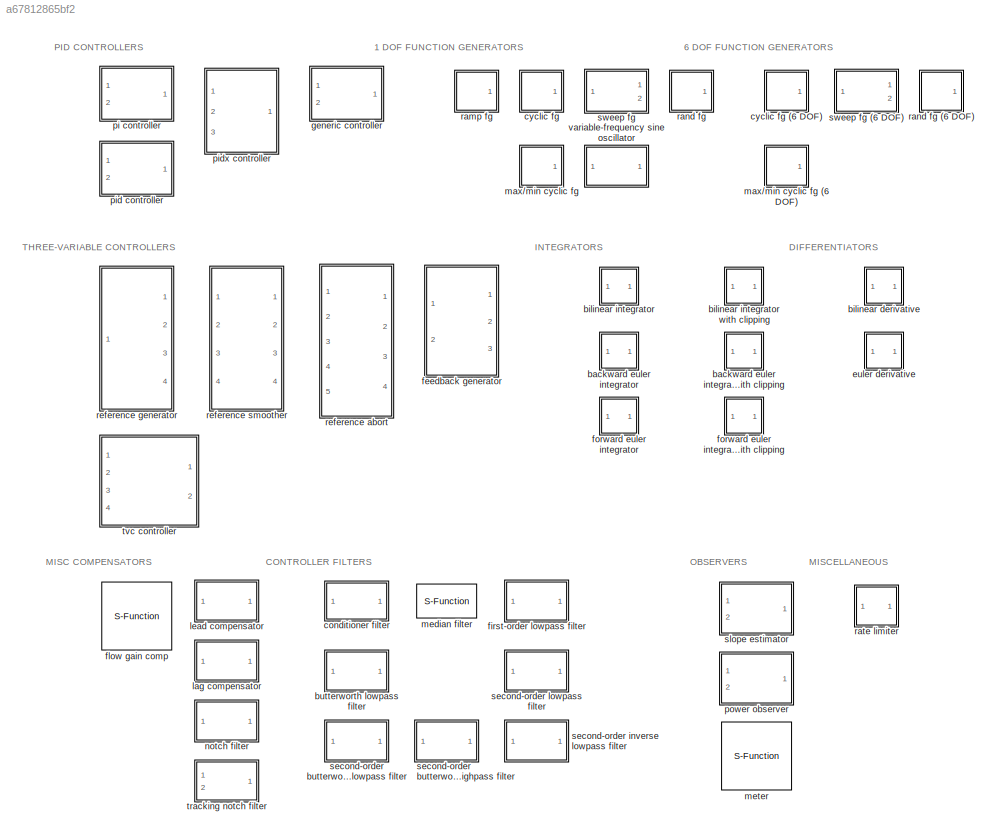
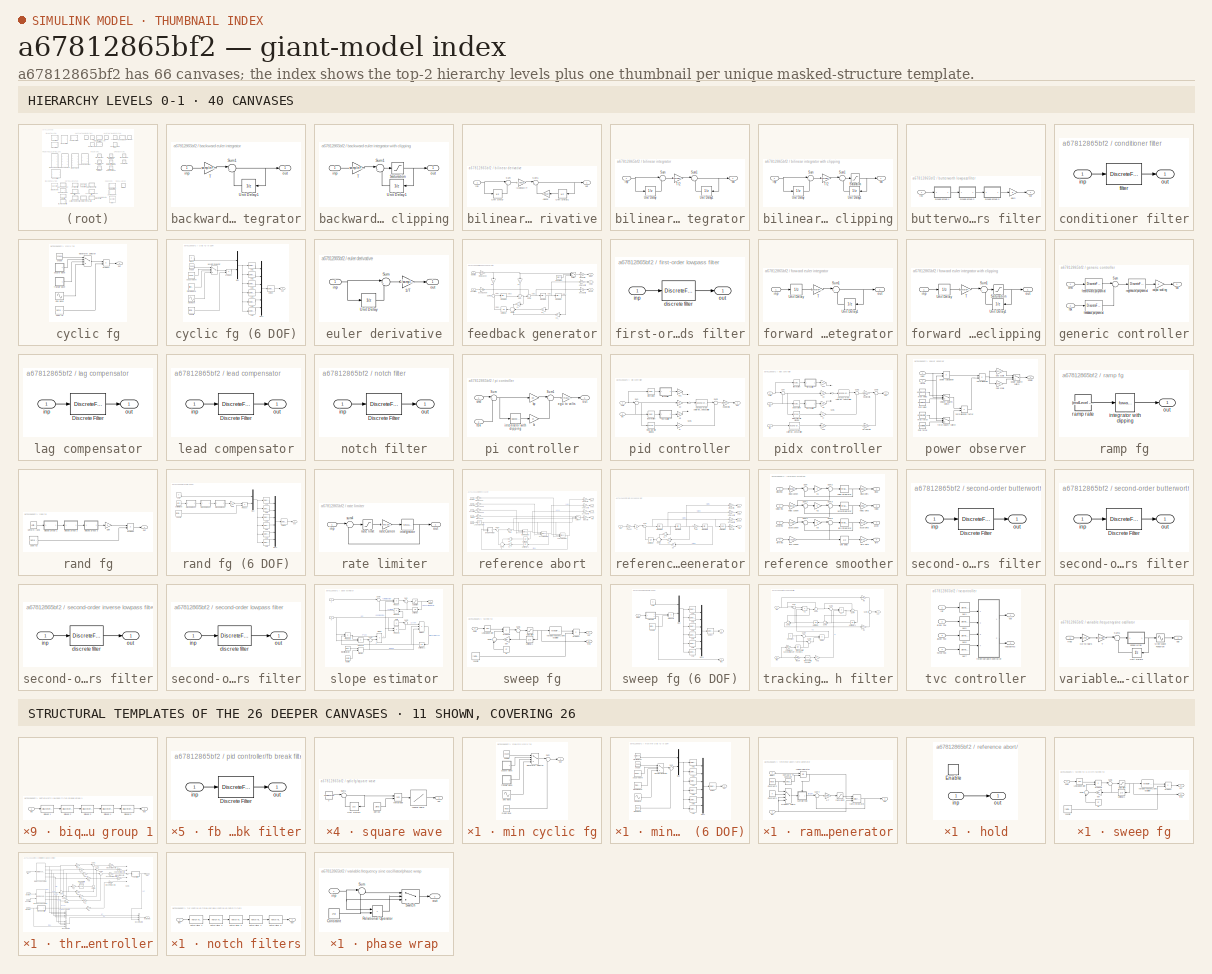
[diagram: thumbnail index - top-2 hierarchy levels (40 canvases) + 11 structural-template representatives of the remaining 26 canvases]
MODEL slx_a67812865bf2
KIND library
CONFIG AbsTol = auto
CONFIG FixedStep = auto
CONFIG MaxStep = auto
CONFIG MinStep = auto
CONFIG RelTol = 1e-3
CONFIG SampleTimeConstraint = Unconstrained
CONFIG Solver = ode45
CONFIG SolverMode = SingleTasking
CONFIG SolverName = ode45
CONFIG StartTime = 0.0
CONFIG StopTime = 10.0
BLOCK [SubSystem] backward euler integrator
  Ports = [1, 1]
  RequestExecContextInheritance = off
  Variant = off
BLOCK [SubSystem] backward euler integrator with clipping
  Ports = [1, 1]
  RequestExecContextInheritance = off
  Variant = off
BLOCK [Saturate] backward euler integrator with clipping/Saturation
  InputPortMap = u0
  LowerLimit = minOutput
  Ports = [1, 1]
  UpperLimit = maxOutput
BLOCK [Sum] backward euler integrator with clipping/Sum1
  IconShape = round
  Inputs = |++
  Ports = [2, 1]
BLOCK [Gain] backward euler integrator with clipping/T
  Gain = samplePeriod
  OutDataTypeStr = Inherit: Inherit via internal rule
  ParamDataTypeStr = Inherit: Inherit via internal rule
  SaturateOnIntegerOverflow = off
BLOCK [UnitDelay] backward euler integrator with clipping/Unit Delay1
  InitialCondition = initialCondition
  SampleTime = -1
BLOCK [Inport] backward euler integrator with clipping/inp
  IconDisplay = Port number
BLOCK [Outport] backward euler integrator with clipping/out
  IconDisplay = Port number
BLOCK [Sum] backward euler integrator/Sum1
  IconShape = round
  Inputs = |++
  Ports = [2, 1]
BLOCK [Gain] backward euler integrator/T
  Gain = samplePeriod
  OutDataTypeStr = Inherit: Inherit via internal rule
  ParamDataTypeStr = Inherit: Inherit via internal rule
  SaturateOnIntegerOverflow = off
BLOCK [UnitDelay] backward euler integrator/Unit Delay1
  InitialCondition = initialCondition
  SampleTime = -1
BLOCK [Inport] backward euler integrator/inp
  IconDisplay = Port number
BLOCK [Outport] backward euler integrator/out
  IconDisplay = Port number
BLOCK [SubSystem] bilinear derivative
  Ports = [1, 1]
  RequestExecContextInheritance = off
  Variant = off
BLOCK [Gain] bilinear derivative/(1+decay)//T
  Gain = (1+decay)/samplePeriod
  OutDataTypeStr = Inherit: Inherit via internal rule
  ParamDataTypeStr = Inherit: Inherit via internal rule
  SaturateOnIntegerOverflow = off
BLOCK [Gain] bilinear derivative/-decay
  Gain = -decay
  OutDataTypeStr = Inherit: Inherit via internal rule
  ParamDataTypeStr = Inherit: Inherit via internal rule
  SaturateOnIntegerOverflow = off
BLOCK [Sum] bilinear derivative/Sum
  IconShape = round
  Inputs = |+-
  Ports = [2, 1]
BLOCK [Sum] bilinear derivative/Sum1
  IconShape = round
  Inputs = |++
  Ports = [2, 1]
BLOCK [UnitDelay] bilinear derivative/Unit Delay
  InitialCondition = initialCondition
  SampleTime = -1
BLOCK [UnitDelay] bilinear derivative/Unit Delay1
  SampleTime = -1
BLOCK [Inport] bilinear derivative/inp
  IconDisplay = Port number
BLOCK [Outport] bilinear derivative/out
  IconDisplay = Port number
BLOCK [SubSystem] bilinear integrator
  Ports = [1, 1]
  RequestExecContextInheritance = off
  Variant = off
BLOCK [SubSystem] bilinear integrator with clipping
  Ports = [1, 1]
  RequestExecContextInheritance = off
  Variant = off
BLOCK [Saturate] bilinear integrator with clipping/Saturation
  InputPortMap = u0
  LowerLimit = minOutput
  Ports = [1, 1]
  UpperLimit = maxOutput
BLOCK [Sum] bilinear integrator with clipping/Sum
  IconShape = round
  Inputs = |++
  Ports = [2, 1]
BLOCK [Sum] bilinear integrator with clipping/Sum1
  IconShape = round
  Inputs = |++
  Ports = [2, 1]
BLOCK [Gain] bilinear integrator with clipping/T//2
  Gain = samplePeriod/2
  OutDataTypeStr = Inherit: Inherit via internal rule
  ParamDataTypeStr = Inherit: Inherit via internal rule
  SaturateOnIntegerOverflow = off
BLOCK [UnitDelay] bilinear integrator with clipping/Unit Delay
  SampleTime = -1
BLOCK [UnitDelay] bilinear integrator with clipping/Unit Delay1
  InitialCondition = initialCondition
  SampleTime = -1
BLOCK [Inport] bilinear integrator with clipping/inp
  IconDisplay = Port number
BLOCK [Outport] bilinear integrator with clipping/out
  IconDisplay = Port number
BLOCK [Sum] bilinear integrator/Sum
  IconShape = round
  Inputs = |++
  Ports = [2, 1]
BLOCK [Sum] bilinear integrator/Sum1
  IconShape = round
  Inputs = |++
  Ports = [2, 1]
BLOCK [Gain] bilinear integrator/T//2
  Gain = samplePeriod/2
  OutDataTypeStr = Inherit: Inherit via internal rule
  ParamDataTypeStr = Inherit: Inherit via internal rule
  SaturateOnIntegerOverflow = off
BLOCK [UnitDelay] bilinear integrator/Unit Delay
  SampleTime = -1
BLOCK [UnitDelay] bilinear integrator/Unit Delay1
  InitialCondition = initialCondition
  SampleTime = -1
BLOCK [Inport] bilinear integrator/inp
  IconDisplay = Port number
BLOCK [Outport] bilinear integrator/out
  IconDisplay = Port number
BLOCK [SubSystem] butterworth lowpass filter
  Ports = [1, 1]
  RequestExecContextInheritance = off
  Variant = off
BLOCK [SubSystem] butterworth lowpass filter/biquad group 1
  Ports = [1, 1]
  RequestExecContextInheritance = off
  Variant = off
BLOCK [DiscreteFilter] butterworth lowpass filter/biquad group 1/biquad 1
  Denominator = sos(1,4:6)
  InputPortMap = u0
  Numerator = sos(1,1:3)
  Ports = [1, 1]
BLOCK [DiscreteFilter] butterworth lowpass filter/biquad group 1/biquad 2
  Denominator = sos(2,4:6)
  InputPortMap = u0
  Numerator = sos(2,1:3)
  Ports = [1, 1]
BLOCK [DiscreteFilter] butterworth lowpass filter/biquad group 1/biquad 3
  Denominator = sos(3,4:6)
  InputPortMap = u0
  Numerator = sos(3,1:3)
  Ports = [1, 1]
BLOCK [DiscreteFilter] butterworth lowpass filter/biquad group 1/biquad 4
  Denominator = sos(4,4:6)
  InputPortMap = u0
  Numerator = sos(4,1:3)
  Ports = [1, 1]
BLOCK [DiscreteFilter] butterworth lowpass filter/biquad group 1/biquad 5
  Denominator = sos(5,4:6)
  InputPortMap = u0
  Numerator = sos(5,1:3)
  Ports = [1, 1]
BLOCK [Inport] butterworth lowpass filter/biquad group 1/inp
  IconDisplay = Port number
BLOCK [Outport] butterworth lowpass filter/biquad group 1/out
  IconDisplay = Port number
BLOCK [SubSystem] butterworth lowpass filter/biquad group 2
  Ports = [1, 1]
  RequestExecContextInheritance = off
  Variant = off
BLOCK [DiscreteFilter] butterworth lowpass filter/biquad group 2/biquad 1
  Denominator = sos(1,4:6)
  InputPortMap = u0
  Numerator = sos(1,1:3)
  Ports = [1, 1]
BLOCK [DiscreteFilter] butterworth lowpass filter/biquad group 2/biquad 2
  Denominator = sos(2,4:6)
  InputPortMap = u0
  Numerator = sos(2,1:3)
  Ports = [1, 1]
BLOCK [DiscreteFilter] butterworth lowpass filter/biquad group 2/biquad 3
  Denominator = sos(3,4:6)
  InputPortMap = u0
  Numerator = sos(3,1:3)
  Ports = [1, 1]
BLOCK [DiscreteFilter] butterworth lowpass filter/biquad group 2/biquad 4
  Denominator = sos(4,4:6)
  InputPortMap = u0
  Numerator = sos(4,1:3)
  Ports = [1, 1]
BLOCK [DiscreteFilter] butterworth lowpass filter/biquad group 2/biquad 5
  Denominator = sos(5,4:6)
  InputPortMap = u0
  Numerator = sos(5,1:3)
  Ports = [1, 1]
BLOCK [Inport] butterworth lowpass filter/biquad group 2/inp
  IconDisplay = Port number
BLOCK [Outport] butterworth lowpass filter/biquad group 2/out
  IconDisplay = Port number
BLOCK [SubSystem] butterworth lowpass filter/biquad group 3
  Ports = [1, 1]
  RequestExecContextInheritance = off
  Variant = off
BLOCK [DiscreteFilter] butterworth lowpass filter/biquad group 3/biquad 1
  Denominator = sos(1,4:6)
  InputPortMap = u0
  Numerator = sos(1,1:3)
  Ports = [1, 1]
BLOCK [DiscreteFilter] butterworth lowpass filter/biquad group 3/biquad 2
  Denominator = sos(2,4:6)
  InputPortMap = u0
  Numerator = sos(2,1:3)
  Ports = [1, 1]
BLOCK [DiscreteFilter] butterworth lowpass filter/biquad group 3/biquad 3
  Denominator = sos(3,4:6)
  InputPortMap = u0
  Numerator = sos(3,1:3)
  Ports = [1, 1]
BLOCK [DiscreteFilter] butterworth lowpass filter/biquad group 3/biquad 4
  Denominator = sos(4,4:6)
  InputPortMap = u0
  Numerator = sos(4,1:3)
  Ports = [1, 1]
BLOCK [DiscreteFilter] butterworth lowpass filter/biquad group 3/biquad 5
  Denominator = sos(5,4:6)
  InputPortMap = u0
  Numerator = sos(5,1:3)
  Ports = [1, 1]
BLOCK [Inport] butterworth lowpass filter/biquad group 3/inp
  IconDisplay = Port number
BLOCK [Outport] butterworth lowpass filter/biquad group 3/out
  IconDisplay = Port number
BLOCK [Gain] butterworth lowpass filter/gain
  Gain = g
  OutDataTypeStr = Inherit: Inherit via internal rule
  ParamDataTypeStr = Inherit: Inherit via internal rule
  SaturateOnIntegerOverflow = off
BLOCK [Inport] butterworth lowpass filter/inp
  IconDisplay = Port number
BLOCK [Outport] butterworth lowpass filter/out
  IconDisplay = Port number
BLOCK [SubSystem] conditioner filter
  Ports = [1, 1]
  RequestExecContextInheritance = off
  Variant = off
BLOCK [DiscreteFilter] conditioner filter/filter
  Denominator = a
  InputPortMap = u0
  Numerator = b
  Ports = [1, 1]
BLOCK [Inport] conditioner filter/inp
  IconDisplay = Port number
BLOCK [Outport] conditioner filter/out
  IconDisplay = Port number
BLOCK [SubSystem] cyclic fg
  Ports = [0, 1]
  RequestExecContextInheritance = off
  Variant = off
BLOCK [SubSystem] cyclic fg (6 DOF)
  Ports = [0, 1]
  RequestExecContextInheritance = off
  Variant = off
BLOCK [Mux] cyclic fg (6 DOF)/Mux
  DisplayOption = bar
  Inputs = 2
  Ports = [2, 1]
BLOCK [Mux] cyclic fg (6 DOF)/Mux1
  DisplayOption = bar
  Inputs = 6
  Ports = [6, 1]
BLOCK [Product] cyclic fg (6 DOF)/Product
  InputSameDT = off
  OutDataTypeStr = Inherit: Inherit via internal rule
  Ports = [2, 1]
  SaturateOnIntegerOverflow = off
BLOCK [Selector] cyclic fg (6 DOF)/dof sel
  IndexOptions = Index vector (dialog)
  Indices = dof
  OutputSizes = 1
  Ports = [1, 1]
BLOCK [Outport] cyclic fg (6 DOF)/out
  IconDisplay = Port number
BLOCK [Selector] cyclic fg (6 DOF)/sel1
  IndexOptions = Index vector (dialog)
  Indices = (id==1)+1
  InputPortWidth = 2
  OutputSizes = 1
  Ports = [1, 1]
BLOCK [Selector] cyclic fg (6 DOF)/sel2
  IndexOptions = Index vector (dialog)
  Indices = (id==2)+1
  InputPortWidth = 2
  OutputSizes = 1
  Ports = [1, 1]
BLOCK [Selector] cyclic fg (6 DOF)/sel3
  IndexOptions = Index vector (dialog)
  Indices = (id==3)+1
  InputPortWidth = 2
  OutputSizes = 1
  Ports = [1, 1]
BLOCK [Selector] cyclic fg (6 DOF)/sel4
  IndexOptions = Index vector (dialog)
  Indices = (id==4)+1
  InputPortWidth = 2
  OutputSizes = 1
  Ports = [1, 1]
BLOCK [Selector] cyclic fg (6 DOF)/sel5
  IndexOptions = Index vector (dialog)
  Indices = (id==5)+1
  InputPortWidth = 2
  OutputSizes = 1
  Ports = [1, 1]
BLOCK [Selector] cyclic fg (6 DOF)/sel6
  IndexOptions = Index vector (dialog)
  Indices = (id==6)+1
  InputPortWidth = 2
  OutputSizes = 1
  Ports = [1, 1]
BLOCK [Constant] cyclic fg (6 DOF)/shape
  Value = shape
BLOCK [Sin] cyclic fg (6 DOF)/sine wave
  Amplitude = ampl
  Frequency = 2 * pi * freq
  Phase = phase * pi/180
  Ports = [0, 1]
  SampleTime = sourceSamplePeriod
BLOCK [Reference] cyclic fg (6 DOF)/span fg  REF=LibControllers/ramp fg
  Ports = [0, 1]
  SourceBlock = LibControllers/ramp fg
  SourceType = Ramp Function Generator
BLOCK [Reference] cyclic fg (6 DOF)/square wave  REF=LibControllers/cyclic fg/square
wave
  Ports = [0, 1]
  SourceBlock = LibControllers/cyclic fg/square\nwave
  SourceType = Repeating table
BLOCK [Reference] cyclic fg (6 DOF)/triangle wave  REF=LibControllers/cyclic fg/triangle
wave
  Ports = [0, 1]
  SourceBlock = LibControllers/cyclic fg/triangle\nwave
  SourceType = Repeating table
BLOCK [MultiPortSwitch] cyclic fg (6 DOF)/waveform selector
  InputSameDT = off
  Ports = [4, 1]
  SaturateOnIntegerOverflow = off
BLOCK [Constant] cyclic fg (6 DOF)/zero
  Value = 0
BLOCK [Product] cyclic fg/Product
  InputSameDT = off
  OutDataTypeStr = Inherit: Inherit via internal rule
  Ports = [2, 1]
  SaturateOnIntegerOverflow = off
BLOCK [Outport] cyclic fg/out
  IconDisplay = Port number
BLOCK [Constant] cyclic fg/shape
  Value = shape
BLOCK [Sin] cyclic fg/sine wave
  Amplitude = ampl
  Frequency = 2 * pi * freq
  Phase = phase * pi/180
  Ports = [0, 1]
  SampleTime = sourceSamplePeriod
BLOCK [Reference] cyclic fg/span fg  REF=LibControllers/ramp fg
  Ports = [0, 1]
  SourceBlock = LibControllers/ramp fg
  SourceType = Ramp Function Generator
BLOCK [SubSystem] cyclic fg/square wave
  Ports = [0, 1]
  RequestExecContextInheritance = off
  Variant = off
BLOCK [Lookup] cyclic fg/square wave/Lookup Table
  InputValues = [0 0.5/freq 1/freq]
  LookUpMeth = Use Input Nearest
  SaturateOnIntegerOverflow = off
  Table = [-ampl ampl -ampl]
BLOCK [Sum] cyclic fg/square wave/Sum1
  IconShape = round
  Inputs = |++
  Ports = [2, 1]
BLOCK [Constant] cyclic fg/square wave/T
  Value = samplePeriod
BLOCK [UnitDelay] cyclic fg/square wave/Unit Delay1
  InitialCondition = ((phase+90)/360) / freq
  SampleTime = -1
BLOCK [Outport] cyclic fg/square wave/out
  IconDisplay = Port number
BLOCK [Constant] cyclic fg/square wave/period
  Value = 1/freq
BLOCK [Math] cyclic fg/square wave/remainder
  Operator = rem
  Ports = [2, 1]
BLOCK [SubSystem] cyclic fg/triangle wave
  Ports = [0, 1]
  RequestExecContextInheritance = off
  Variant = off
BLOCK [Lookup] cyclic fg/triangle wave/Lookup Table
  InputValues = [0 0.5/freq 1/freq]
  SaturateOnIntegerOverflow = off
  Table = [-ampl ampl -ampl]
BLOCK [Sum] cyclic fg/triangle wave/Sum1
  IconShape = round
  Inputs = |++
  Ports = [2, 1]
BLOCK [Constant] cyclic fg/triangle wave/T
  Value = samplePeriod
BLOCK [UnitDelay] cyclic fg/triangle wave/Unit Delay1
  InitialCondition = ((phase+90)/360) / freq
  SampleTime = -1
BLOCK [Outport] cyclic fg/triangle wave/out
  IconDisplay = Port number
BLOCK [Constant] cyclic fg/triangle wave/period
  Value = 1/freq
BLOCK [Math] cyclic fg/triangle wave/remainder
  Operator = rem
  Ports = [2, 1]
BLOCK [MultiPortSwitch] cyclic fg/waveform selector
  InputSameDT = off
  Ports = [4, 1]
  SaturateOnIntegerOverflow = off
BLOCK [SubSystem] euler derivative
  Ports = [1, 1]
  RequestExecContextInheritance = off
  Variant = off
BLOCK [Gain] euler derivative/1//T
  Gain = 1/samplePeriod
  OutDataTypeStr = Inherit: Inherit via internal rule
  ParamDataTypeStr = Inherit: Inherit via internal rule
  SaturateOnIntegerOverflow = off
BLOCK [Sum] euler derivative/Sum
  IconShape = round
  Inputs = |+-
  Ports = [2, 1]
BLOCK [UnitDelay] euler derivative/Unit Delay
  InitialCondition = initialCondition
  SampleTime = -1
BLOCK [Inport] euler derivative/inp
  IconDisplay = Port number
BLOCK [Outport] euler derivative/out
  IconDisplay = Port number
BLOCK [SubSystem] feedback generator
  Ports = [2, 3]
  RequestExecContextInheritance = off
  Variant = off
BLOCK [Constant] feedback generator/Constant
  Value = direct
BLOCK [Sum] feedback generator/Sum
  IconShape = round
  InputSameDT = off
  Inputs = ++|
  OutDataTypeStr = Inherit: Inherit via internal rule
  Ports = [2, 1]
  SaturateOnIntegerOverflow = off
BLOCK [Sum] feedback generator/Sum1
  IconShape = round
  InputSameDT = off
  Inputs = +|+|+
  OutDataTypeStr = Inherit: Inherit via internal rule
  Ports = [3, 1]
  SaturateOnIntegerOverflow = off
BLOCK [Sum] feedback generator/Sum2
  IconShape = round
  InputSameDT = off
  Inputs = ++|
  OutDataTypeStr = Inherit: Inherit via internal rule
  Ports = [2, 1]
  SaturateOnIntegerOverflow = off
BLOCK [Sum] feedback generator/Sum3
  IconShape = round
  InputSameDT = off
  Inputs = +|-
  OutDataTypeStr = Inherit: Inherit via internal rule
  Ports = [2, 1]
  SaturateOnIntegerOverflow = off
BLOCK [Switch] feedback generator/Switch
  Criteria = u2 ~= 0
  InputSameDT = off
  SaturateOnIntegerOverflow = off
  ZeroCross = off
BLOCK [UnitDelay] feedback generator/Unit Delay
  SampleTime = -1
BLOCK [Outport] feedback generator/accel
  IconDisplay = Port number
  Port = 3
BLOCK [Gain] feedback generator/accel canon
  Gain = accelCanon
  OutDataTypeStr = Inherit: Inherit via internal rule
  ParamDataTypeStr = Inherit: Inherit via internal rule
  SaturateOnIntegerOverflow = off
BLOCK [Inport] feedback generator/accel inp
  IconDisplay = Port number
  Port = 2
BLOCK [Gain] feedback generator/accel units
  Gain = 1/accelCanon
  OutDataTypeStr = Inherit: Inherit via internal rule
  ParamDataTypeStr = Inherit: Inherit via internal rule
  SaturateOnIntegerOverflow = off
BLOCK [Outport] feedback generator/displ
  IconDisplay = Port number
BLOCK [Gain] feedback generator/displ canon
  Gain = displCanon
  OutDataTypeStr = Inherit: Inherit via internal rule
  ParamDataTypeStr = Inherit: Inherit via internal rule
  SaturateOnIntegerOverflow = off
BLOCK [Inport] feedback generator/displ inp
  IconDisplay = Port number
BLOCK [Gain] feedback generator/displ units
  Gain = 1/displCanon
  OutDataTypeStr = Inherit: Inherit via internal rule
  ParamDataTypeStr = Inherit: Inherit via internal rule
  SaturateOnIntegerOverflow = off
BLOCK [Reference] feedback generator/integrator 0  REF=LibControllers/bilinear integrator
  Ports = [1, 1]
  SourceBlock = LibControllers/bilinear integrator
  SourceType = Discrete Bilinear Integrator
BLOCK [Reference] feedback generator/integrator 1  REF=LibControllers/bilinear integrator
  Ports = [1, 1]
  SourceBlock = LibControllers/bilinear integrator
  SourceType = Discrete Bilinear Integrator
BLOCK [Reference] feedback generator/integrator 2  REF=LibControllers/bilinear integrator
  Ports = [1, 1]
  SourceBlock = LibControllers/bilinear integrator
  SourceType = Discrete Bilinear Integrator
BLOCK [Gain] feedback generator/k1
  Gain = a2
  OutDataTypeStr = Inherit: Inherit via internal rule
  ParamDataTypeStr = Inherit: Inherit via internal rule
  SaturateOnIntegerOverflow = off
BLOCK [Gain] feedback generator/k2
  Gain = a1
  OutDataTypeStr = Inherit: Inherit via internal rule
  ParamDataTypeStr = Inherit: Inherit via internal rule
  SaturateOnIntegerOverflow = off
BLOCK [Gain] feedback generator/k2_
  Gain = a1
  OutDataTypeStr = Inherit: Inherit via internal rule
  ParamDataTypeStr = Inherit: Inherit via internal rule
  SaturateOnIntegerOverflow = off
BLOCK [Gain] feedback generator/k3
  Gain = a0
  OutDataTypeStr = Inherit: Inherit via internal rule
  ParamDataTypeStr = Inherit: Inherit via internal rule
  SaturateOnIntegerOverflow = off
BLOCK [Gain] feedback generator/k3_
  Gain = a0
  OutDataTypeStr = Inherit: Inherit via internal rule
  ParamDataTypeStr = Inherit: Inherit via internal rule
  SaturateOnIntegerOverflow = off
BLOCK [Outport] feedback generator/veloc
  IconDisplay = Port number
  Port = 2
BLOCK [Gain] feedback generator/veloc units
  Gain = 1/velocCanon
  OutDataTypeStr = Inherit: Inherit via internal rule
  ParamDataTypeStr = Inherit: Inherit via internal rule
  SaturateOnIntegerOverflow = off
BLOCK [SubSystem] first-order lowpass filter
  Ports = [1, 1]
  RequestExecContextInheritance = off
  Variant = off
BLOCK [DiscreteFilter] first-order lowpass filter/discrete filter
  Denominator = a
  InputPortMap = u0
  Numerator = b
  Ports = [1, 1]
BLOCK [Inport] first-order lowpass filter/inp
  IconDisplay = Port number
BLOCK [Outport] first-order lowpass filter/out
  IconDisplay = Port number
BLOCK [S-Function] flow gain comp
  EnableBusSupport = off
  FunctionName = Flowgain
  Parameters = [satAuth droopAuth switchAuth ratedFlow nominFlow nomPress minPress maxForce]
  Ports = [3, 2]
  SFunctionDeploymentMode = off
BLOCK [SubSystem] forward euler integrator
  Ports = [1, 1]
  RequestExecContextInheritance = off
  Variant = off
BLOCK [SubSystem] forward euler integrator with clipping
  Ports = [1, 1]
  RequestExecContextInheritance = off
  Variant = off
BLOCK [Saturate] forward euler integrator with clipping/Saturation
  InputPortMap = u0
  LowerLimit = minOutput
  Ports = [1, 1]
  UpperLimit = maxOutput
BLOCK [Sum] forward euler integrator with clipping/Sum1
  IconShape = round
  Inputs = |++
  Ports = [2, 1]
BLOCK [Gain] forward euler integrator with clipping/T
  Gain = samplePeriod
  OutDataTypeStr = Inherit: Inherit via internal rule
  ParamDataTypeStr = Inherit: Inherit via internal rule
  SaturateOnIntegerOverflow = off
BLOCK [UnitDelay] forward euler integrator with clipping/Unit Delay
  SampleTime = -1
BLOCK [UnitDelay] forward euler integrator with clipping/Unit Delay1
  InitialCondition = initialCondition
  SampleTime = -1
BLOCK [Inport] forward euler integrator with clipping/inp
  IconDisplay = Port number
BLOCK [Outport] forward euler integrator with clipping/out
  IconDisplay = Port number
BLOCK [Sum] forward euler integrator/Sum1
  IconShape = round
  Inputs = |++
  Ports = [2, 1]
BLOCK [Gain] forward euler integrator/T
  Gain = samplePeriod
  OutDataTypeStr = Inherit: Inherit via internal rule
  ParamDataTypeStr = Inherit: Inherit via internal rule
  SaturateOnIntegerOverflow = off
BLOCK [UnitDelay] forward euler integrator/Unit Delay
  SampleTime = -1
BLOCK [UnitDelay] forward euler integrator/Unit Delay1
  InitialCondition = initialCondition
  SampleTime = -1
BLOCK [Inport] forward euler integrator/inp
  IconDisplay = Port number
BLOCK [Outport] forward euler integrator/out
  IconDisplay = Port number
BLOCK [SubSystem] generic controller
  Ports = [2, 1]
  RequestExecContextInheritance = off
  Variant = off
BLOCK [Sum] generic controller/Sum
  IconShape = round
  InputSameDT = off
  Inputs = |+-
  OutDataTypeStr = Inherit: Inherit via internal rule
  Ports = [2, 1]
  SaturateOnIntegerOverflow = off
BLOCK [Inport] generic controller/cmd
  IconDisplay = Port number
BLOCK [Inport] generic controller/fbk
  IconDisplay = Port number
  Port = 2
BLOCK [DiscreteFir] generic controller/feedback polynomial
  AccumDataTypeStr = Inherit: Same as product output
  Coefficients = adjustCoefficients(S)
  InputPortMap = u0
  OutputPortMap = o0
  Ports = [1, 1]
BLOCK [DiscreteFir] generic controller/feedforward polynomial
  AccumDataTypeStr = Inherit: Same as product output
  Coefficients = (T).'
  InputPortMap = u0
  OutputPortMap = o0
  Ports = [1, 1]
BLOCK [Outport] generic controller/out
  IconDisplay = Port number
BLOCK [Gain] generic controller/output scaling
  Gain = k
  OutDataTypeStr = Inherit: Inherit via internal rule
  ParamDataTypeStr = Inherit: Inherit via internal rule
  SaturateOnIntegerOverflow = off
BLOCK [DiscreteFilter] generic controller/regression polynomial
  Denominator = R
  InputPortMap = u0
  Ports = [1, 1]
BLOCK [SubSystem] lag compensator
  Ports = [1, 1]
  RequestExecContextInheritance = off
  Variant = off
BLOCK [DiscreteFilter] lag compensator/Discrete Filter
  Denominator = a
  InputPortMap = u0
  Numerator = b
  Ports = [1, 1]
BLOCK [Inport] lag compensator/inp
  IconDisplay = Port number
BLOCK [Outport] lag compensator/out
  IconDisplay = Port number
BLOCK [SubSystem] lead compensator
  Ports = [1, 1]
  RequestExecContextInheritance = off
  Variant = off
BLOCK [DiscreteFilter] lead compensator/Discrete Filter
  Denominator = a
  InputPortMap = u0
  Numerator = b
  Ports = [1, 1]
BLOCK [Inport] lead compensator/inp
  IconDisplay = Port number
BLOCK [Outport] lead compensator/out
  IconDisplay = Port number
BLOCK [SubSystem] max//min cyclic fg
  Ports = [0, 1]
  RequestExecContextInheritance = off
  Variant = off
BLOCK [SubSystem] max//min cyclic fg (6 DOF)
  Ports = [0, 1]
  RequestExecContextInheritance = off
  Variant = off
BLOCK [Mux] max//min cyclic fg (6 DOF)/Mux
  DisplayOption = bar
  Inputs = 2
  Ports = [2, 1]
BLOCK [Mux] max//min cyclic fg (6 DOF)/Mux1
  DisplayOption = bar
  Inputs = 6
  Ports = [6, 1]
BLOCK [Sum] max//min cyclic fg (6 DOF)/Sum
  IconShape = round
  InputSameDT = off
  Inputs = |++
  OutDataTypeStr = Inherit: Inherit via internal rule
  Ports = [2, 1]
  SaturateOnIntegerOverflow = off
BLOCK [Selector] max//min cyclic fg (6 DOF)/dof sel
  IndexOptions = Index vector (dialog)
  Indices = dof
  OutputSizes = 1
  Ports = [1, 1]
BLOCK [Constant] max//min cyclic fg (6 DOF)/mean level
  Value = mean
BLOCK [Outport] max//min cyclic fg (6 DOF)/out
  IconDisplay = Port number
BLOCK [Selector] max//min cyclic fg (6 DOF)/sel1
  IndexOptions = Index vector (dialog)
  Indices = (id==1)+1
  InputPortWidth = 2
  OutputSizes = 1
  Ports = [1, 1]
BLOCK [Selector] max//min cyclic fg (6 DOF)/sel2
  IndexOptions = Index vector (dialog)
  Indices = (id==2)+1
  InputPortWidth = 2
  OutputSizes = 1
  Ports = [1, 1]
BLOCK [Selector] max//min cyclic fg (6 DOF)/sel3
  IndexOptions = Index vector (dialog)
  Indices = (id==3)+1
  InputPortWidth = 2
  OutputSizes = 1
  Ports = [1, 1]
BLOCK [Selector] max//min cyclic fg (6 DOF)/sel4
  IndexOptions = Index vector (dialog)
  Indices = (id==4)+1
  InputPortWidth = 2
  OutputSizes = 1
  Ports = [1, 1]
BLOCK [Selector] max//min cyclic fg (6 DOF)/sel5
  IndexOptions = Index vector (dialog)
  Indices = (id==5)+1
  InputPortWidth = 2
  OutputSizes = 1
  Ports = [1, 1]
BLOCK [Selector] max//min cyclic fg (6 DOF)/sel6
  IndexOptions = Index vector (dialog)
  Indices = (id==6)+1
  InputPortWidth = 2
  OutputSizes = 1
  Ports = [1, 1]
BLOCK [Constant] max//min cyclic fg (6 DOF)/shape
  Value = shape
BLOCK [Sin] max//min cyclic fg (6 DOF)/sine wave
  Amplitude = ampl
  Frequency = 2 * pi * freq
  Phase = phase * pi/180
  Ports = [0, 1]
  SampleTime = sourceSamplePeriod
BLOCK [Reference] max//min cyclic fg (6 DOF)/square wave  REF=LibControllers/cyclic fg/square
wave
  Ports = [0, 1]
  SourceBlock = LibControllers/cyclic fg/square\nwave
  SourceType = Repeating table
BLOCK [Constant] max//min cyclic fg (6 DOF)/starting level
  Value = startLevel
BLOCK [Reference] max//min cyclic fg (6 DOF)/triangle wave  REF=LibControllers/cyclic fg/triangle
wave
  Ports = [0, 1]
  SourceBlock = LibControllers/cyclic fg/triangle\nwave
  SourceType = Repeating table
BLOCK [MultiPortSwitch] max//min cyclic fg (6 DOF)/waveform selector
  InputSameDT = off
  Ports = [4, 1]
  SaturateOnIntegerOverflow = off
BLOCK [Sum] max//min cyclic fg/Sum
  IconShape = round
  InputSameDT = off
  Inputs = |++
  OutDataTypeStr = Inherit: Inherit via internal rule
  Ports = [2, 1]
  SaturateOnIntegerOverflow = off
BLOCK [Constant] max//min cyclic fg/mean level
  Value = mean
BLOCK [Outport] max//min cyclic fg/out
  IconDisplay = Port number
BLOCK [Constant] max//min cyclic fg/shape
  Value = shape
BLOCK [Sin] max//min cyclic fg/sine wave
  Amplitude = ampl
  Frequency = 2 * pi * freq
  Phase = phase * pi/180
  Ports = [0, 1]
  SampleTime = sourceSamplePeriod
BLOCK [SubSystem] max//min cyclic fg/square wave
  Ports = [0, 1]
  RequestExecContextInheritance = off
  Variant = off
BLOCK [Lookup] max//min cyclic fg/square wave/Lookup Table
  InputValues = [0 0.5/freq 1/freq]
  LookUpMeth = Use Input Nearest
  SaturateOnIntegerOverflow = off
  Table = [-ampl ampl -ampl]
BLOCK [Sum] max//min cyclic fg/square wave/Sum1
  IconShape = round
  Inputs = |++
  Ports = [2, 1]
BLOCK [Constant] max//min cyclic fg/square wave/T
  Value = samplePeriod
BLOCK [UnitDelay] max//min cyclic fg/square wave/Unit Delay1
  InitialCondition = ((phase+90)/360) / freq
  SampleTime = -1
BLOCK [Outport] max//min cyclic fg/square wave/out
  IconDisplay = Port number
BLOCK [Constant] max//min cyclic fg/square wave/period
  Value = 1/freq
BLOCK [Math] max//min cyclic fg/square wave/remainder
  Operator = rem
  Ports = [2, 1]
BLOCK [SubSystem] max//min cyclic fg/triangle wave
  Ports = [0, 1]
  RequestExecContextInheritance = off
  Variant = off
BLOCK [Lookup] max//min cyclic fg/triangle wave/Lookup Table
  InputValues = [0 0.5/freq 1/freq]
  SaturateOnIntegerOverflow = off
  Table = [-ampl ampl -ampl]
BLOCK [Sum] max//min cyclic fg/triangle wave/Sum1
  IconShape = round
  Inputs = |++
  Ports = [2, 1]
BLOCK [Constant] max//min cyclic fg/triangle wave/T
  Value = samplePeriod
BLOCK [UnitDelay] max//min cyclic fg/triangle wave/Unit Delay1
  InitialCondition = ((phase+90)/360) / freq
  SampleTime = -1
BLOCK [Outport] max//min cyclic fg/triangle wave/out
  IconDisplay = Port number
BLOCK [Constant] max//min cyclic fg/triangle wave/period
  Value = 1/freq
BLOCK [Math] max//min cyclic fg/triangle wave/remainder
  Operator = rem
  Ports = [2, 1]
BLOCK [MultiPortSwitch] max//min cyclic fg/waveform selector
  InputSameDT = off
  Ports = [4, 1]
  SaturateOnIntegerOverflow = off
BLOCK [S-Function] median filter
  EnableBusSupport = off
  FunctionName = median
  Parameters = width
  Ports = [1, 1]
  SFunctionDeploymentMode = off
BLOCK [S-Function] meter
  EnableBusSupport = off
  FunctionName = meter
  Parameters = [mode band decay samplePeriod]
  Ports = [3, 2]
  SFunctionDeploymentMode = off
BLOCK [SubSystem] notch filter
  Ports = [1, 1]
  RequestExecContextInheritance = off
  Variant = off
BLOCK [DiscreteFilter] notch filter/Discrete Filter
  Denominator = a
  InputPortMap = u0
  Numerator = b
  Ports = [1, 1]
BLOCK [Inport] notch filter/inp
  IconDisplay = Port number
BLOCK [Outport] notch filter/out
  IconDisplay = Port number
BLOCK [SubSystem] pi controller
  Ports = [2, 1]
  RequestExecContextInheritance = off
  Variant = off
BLOCK [Sum] pi controller/Sum
  IconShape = round
  InputSameDT = off
  Inputs = |+-
  OutDataTypeStr = Inherit: Inherit via internal rule
  Ports = [2, 1]
  SaturateOnIntegerOverflow = off
BLOCK [Sum] pi controller/Sum1
  IconShape = round
  InputSameDT = off
  Inputs = |++
  OutDataTypeStr = Inherit: Inherit via internal rule
  Ports = [2, 1]
  SaturateOnIntegerOverflow = off
BLOCK [Inport] pi controller/cmd
  IconDisplay = Port number
BLOCK [Gain] pi controller/egu to volts
  Gain = 10/maxUnits
  OutDataTypeStr = Inherit: Inherit via internal rule
  ParamDataTypeStr = Inherit: Inherit via internal rule
  SaturateOnIntegerOverflow = off
BLOCK [Inport] pi controller/fbk
  IconDisplay = Port number
  Port = 2
BLOCK [Reference] pi controller/integrator with clipping  REF=LibControllers/backward euler integrator
with clipping
  Ports = [1, 1]
  SourceBlock = LibControllers/backward euler integrator\nwith clipping
  SourceType = Discrete Backward Euler Integrator with Clipping
BLOCK [Gain] pi controller/ki
  Gain = ki
  OutDataTypeStr = Inherit: Inherit via internal rule
  ParamDataTypeStr = Inherit: Inherit via internal rule
  SaturateOnIntegerOverflow = off
BLOCK [Gain] pi controller/kp
  Gain = kp
  OutDataTypeStr = Inherit: Inherit via internal rule
  ParamDataTypeStr = Inherit: Inherit via internal rule
  SaturateOnIntegerOverflow = off
BLOCK [Outport] pi controller/out
  IconDisplay = Port number
BLOCK [SubSystem] pid controller
  Ports = [2, 1]
  RequestExecContextInheritance = off
  Variant = off
BLOCK [Sum] pid controller/Sum
  IconShape = round
  InputSameDT = off
  Inputs = |+-
  OutDataTypeStr = Inherit: Inherit via internal rule
  Ports = [2, 1]
  SaturateOnIntegerOverflow = off
BLOCK [Sum] pid controller/Sum1
  InputSameDT = off
  Inputs = ++-
  OutDataTypeStr = Inherit: Inherit via internal rule
  Ports = [3, 1]
  SaturateOnIntegerOverflow = off
BLOCK [Sum] pid controller/Sum2
  IconShape = round
  InputSameDT = off
  Inputs = |++
  OutDataTypeStr = Inherit: Inherit via internal rule
  Ports = [2, 1]
  SaturateOnIntegerOverflow = off
BLOCK [Inport] pid controller/cmd
  IconDisplay = Port number
BLOCK [Gain] pid controller/egu to volts
  Gain = 10/maxUnits
  OutDataTypeStr = Inherit: Inherit via internal rule
  ParamDataTypeStr = Inherit: Inherit via internal rule
  SaturateOnIntegerOverflow = off
BLOCK [SubSystem] pid controller/fb break filter
  Ports = [1, 1]
  RequestExecContextInheritance = off
  Variant = off
BLOCK [DiscreteFilter] pid controller/fb break filter/Discrete Filter
  Denominator = a
  InputPortMap = u0
  Numerator = b
  Ports = [1, 1]
BLOCK [Inport] pid controller/fb break filter/inp
  IconDisplay = Port number
BLOCK [Outport] pid controller/fb break filter/out
  IconDisplay = Port number
BLOCK [Reference] pid controller/fb derivative  REF=LibControllers/euler derivative
  Ports = [1, 1]
  SourceBlock = LibControllers/euler derivative
  SourceType = Discrete Euler Derivative
BLOCK [Inport] pid controller/fbk
  IconDisplay = Port number
  Port = 2
BLOCK [SubSystem] pid controller/ff break filter
  Ports = [1, 1]
  RequestExecContextInheritance = off
  Variant = off
BLOCK [DiscreteFilter] pid controller/ff break filter/Discrete Filter
  Denominator = a
  InputPortMap = u0
  Numerator = b
  Ports = [1, 1]
BLOCK [Inport] pid controller/ff break filter/inp
  IconDisplay = Port number
BLOCK [Outport] pid controller/ff break filter/out
  IconDisplay = Port number
BLOCK [Reference] pid controller/ff derivative  REF=LibControllers/euler derivative
  Ports = [1, 1]
  SourceBlock = LibControllers/euler derivative
  SourceType = Discrete Euler Derivative
BLOCK [Reference] pid controller/integrator with clipping  REF=LibControllers/backward euler integrator
with clipping
  Ports = [1, 1]
  SourceBlock = LibControllers/backward euler integrator\nwith clipping
  SourceType = Discrete Backward Euler Integrator with Clipping
BLOCK [Gain] pid controller/ki
  Gain = ki
  OutDataTypeStr = Inherit: Inherit via internal rule
  ParamDataTypeStr = Inherit: Inherit via internal rule
  SaturateOnIntegerOverflow = off
BLOCK [Gain] pid controller/ki1
  Gain = kd
  OutDataTypeStr = Inherit: Inherit via internal rule
  ParamDataTypeStr = Inherit: Inherit via internal rule
  SaturateOnIntegerOverflow = off
BLOCK [Gain] pid controller/kp
  Gain = kp
  OutDataTypeStr = Inherit: Inherit via internal rule
  ParamDataTypeStr = Inherit: Inherit via internal rule
  SaturateOnIntegerOverflow = off
BLOCK [Gain] pid controller/kp1
  Gain = kf
  OutDataTypeStr = Inherit: Inherit via internal rule
  ParamDataTypeStr = Inherit: Inherit via internal rule
  SaturateOnIntegerOverflow = off
BLOCK [Outport] pid controller/out
  IconDisplay = Port number
BLOCK [Reference] pid controller/second-order butterworth lowpass filter  REF=LibControllers/second-order
butterworth
lowpass filter
  Ports = [1, 1]
  SourceBlock = LibControllers/second-order\nbutterworth\nlowpass filter
  SourceType = Second-order Butterworth Lowpass Filter
BLOCK [SubSystem] pidx controller
  Ports = [3, 1]
  RequestExecContextInheritance = off
  Variant = off
BLOCK [Sum] pidx controller/Sum
  IconShape = round
  InputSameDT = off
  Inputs = |+-
  OutDataTypeStr = Inherit: Inherit via internal rule
  Ports = [2, 1]
  SaturateOnIntegerOverflow = off
BLOCK [Sum] pidx controller/Sum1
  InputSameDT = off
  Inputs = ++-
  OutDataTypeStr = Inherit: Inherit via internal rule
  Ports = [3, 1]
  SaturateOnIntegerOverflow = off
BLOCK [Sum] pidx controller/Sum2
  IconShape = round
  InputSameDT = off
  Inputs = |++
  OutDataTypeStr = Inherit: Inherit via internal rule
  Ports = [2, 1]
  SaturateOnIntegerOverflow = off
BLOCK [Sum] pidx controller/Sum3
  IconShape = round
  InputSameDT = off
  Inputs = |+-
  OutDataTypeStr = Inherit: Inherit via internal rule
  Ports = [2, 1]
  SaturateOnIntegerOverflow = off
BLOCK [Inport] pidx controller/cmd
  IconDisplay = Port number
BLOCK [Gain] pidx controller/egu to volts
  Gain = 10/maxUnits
  OutDataTypeStr = Inherit: Inherit via internal rule
  ParamDataTypeStr = Inherit: Inherit via internal rule
  SaturateOnIntegerOverflow = off
BLOCK [SubSystem] pidx controller/fb break filter
  Ports = [1, 1]
  RequestExecContextInheritance = off
  Variant = off
BLOCK [DiscreteFilter] pidx controller/fb break filter/Discrete Filter
  Denominator = a
  InputPortMap = u0
  Numerator = b
  Ports = [1, 1]
BLOCK [Inport] pidx controller/fb break filter/inp
  IconDisplay = Port number
BLOCK [Outport] pidx controller/fb break filter/out
  IconDisplay = Port number
BLOCK [Reference] pidx controller/fb derivative  REF=LibControllers/euler derivative
  Ports = [1, 1]
  SourceBlock = LibControllers/euler derivative
  SourceType = Discrete Euler Derivative
BLOCK [Inport] pidx controller/fbk
  IconDisplay = Port number
  Port = 2
BLOCK [SubSystem] pidx controller/ff break filter
  Ports = [1, 1]
  RequestExecContextInheritance = off
  Variant = off
BLOCK [DiscreteFilter] pidx controller/ff break filter/Discrete Filter
  Denominator = a
  InputPortMap = u0
  Numerator = b
  Ports = [1, 1]
BLOCK [Inport] pidx controller/ff break filter/inp
  IconDisplay = Port number
BLOCK [Outport] pidx controller/ff break filter/out
  IconDisplay = Port number
BLOCK [Reference] pidx controller/ff derivative  REF=LibControllers/euler derivative
  Ports = [1, 1]
  SourceBlock = LibControllers/euler derivative
  SourceType = Discrete Euler Derivative
BLOCK [Inport] pidx controller/ffbk
  IconDisplay = Port number
  Port = 3
BLOCK [Gain] pidx controller/force to volts
  Gain = 10/maxForceUnits
  OutDataTypeStr = Inherit: Inherit via internal rule
  ParamDataTypeStr = Inherit: Inherit via internal rule
  SaturateOnIntegerOverflow = off
BLOCK [Reference] pidx controller/integrator with clipping  REF=LibControllers/backward euler integrator
with clipping
  Ports = [1, 1]
  SourceBlock = LibControllers/backward euler integrator\nwith clipping
  SourceType = Discrete Backward Euler Integrator with Clipping
BLOCK [Gain] pidx controller/kdp
  Gain = kdp
  OutDataTypeStr = Inherit: Inherit via internal rule
  ParamDataTypeStr = Inherit: Inherit via internal rule
  SaturateOnIntegerOverflow = off
BLOCK [Gain] pidx controller/ki
  Gain = ki
  OutDataTypeStr = Inherit: Inherit via internal rule
  ParamDataTypeStr = Inherit: Inherit via internal rule
  SaturateOnIntegerOverflow = off
BLOCK [Gain] pidx controller/ki1
  Gain = kd
  OutDataTypeStr = Inherit: Inherit via internal rule
  ParamDataTypeStr = Inherit: Inherit via internal rule
  SaturateOnIntegerOverflow = off
BLOCK [Gain] pidx controller/kp
  Gain = kp
  OutDataTypeStr = Inherit: Inherit via internal rule
  ParamDataTypeStr = Inherit: Inherit via internal rule
  SaturateOnIntegerOverflow = off
BLOCK [Gain] pidx controller/kp1
  Gain = kf
  OutDataTypeStr = Inherit: Inherit via internal rule
  ParamDataTypeStr = Inherit: Inherit via internal rule
  SaturateOnIntegerOverflow = off
BLOCK [Outport] pidx controller/out
  IconDisplay = Port number
BLOCK [Reference] pidx controller/second-order butterworth highpass filter  REF=LibControllers/second-order
butterworth
highpass filter
  Ports = [1, 1]
  SourceBlock = LibControllers/second-order\nbutterworth\nhighpass filter
  SourceType = Second-order Butterworth Highpass Filter
BLOCK [Reference] pidx controller/second-order butterworth lowpass filter  REF=LibControllers/second-order
butterworth
lowpass filter
  Ports = [1, 1]
  SourceBlock = LibControllers/second-order\nbutterworth\nlowpass filter
  SourceType = Second-order Butterworth Lowpass Filter
BLOCK [SubSystem] power observer
  Ports = [2, 1]
  RequestExecContextInheritance = off
  Variant = off
BLOCK [Inport] power observer/force
  IconDisplay = Port number
  Port = 2
BLOCK [Switch] power observer/force polarity switch
  InputSameDT = off
  SaturateOnIntegerOverflow = off
BLOCK [Constant] power observer/max force
  Value = abs(max(fmax, eps))
BLOCK [Constant] power observer/max veloc
  Value = abs(max(vmax, eps))
BLOCK [Constant] power observer/min force
  Value = abs(min(fmin, eps))
BLOCK [Constant] power observer/min veloc
  Value = abs(min(vmin, eps))
BLOCK [Gain] power observer/neg scale
  Gain = 100 / sqrt(2)
  OutDataTypeStr = Inherit: Inherit via internal rule
  ParamDataTypeStr = Inherit: Inherit via internal rule
  SaturateOnIntegerOverflow = off
BLOCK [Product] power observer/normalization
  InputSameDT = off
  Inputs = */
  OutDataTypeStr = Inherit: Inherit via internal rule
  Ports = [2, 1]
  RndMeth = Floor
  SaturateOnIntegerOverflow = off
BLOCK [Product] power observer/normalization factor
  InputSameDT = off
  OutDataTypeStr = Inherit: Inherit via internal rule
  Ports = [2, 1]
  SaturateOnIntegerOverflow = off
BLOCK [Gain] power observer/pos scale
  Gain = 100 * 2 * sqrt(2)
  OutDataTypeStr = Inherit: Inherit via internal rule
  ParamDataTypeStr = Inherit: Inherit via internal rule
  SaturateOnIntegerOverflow = off
BLOCK [Outport] power observer/power
  IconDisplay = Port number
BLOCK [Product] power observer/power calculation
  InputSameDT = off
  OutDataTypeStr = Inherit: Inherit via internal rule
  Ports = [2, 1]
  SaturateOnIntegerOverflow = off
BLOCK [Switch] power observer/power polarity switch
  InputSameDT = off
  SaturateOnIntegerOverflow = off
BLOCK [Inport] power observer/veloc
  IconDisplay = Port number
BLOCK [Switch] power observer/velocity polarity switch
  InputSameDT = off
  SaturateOnIntegerOverflow = off
BLOCK [SubSystem] ramp fg
  Ports = [0, 1]
  RequestExecContextInheritance = off
  Variant = off
BLOCK [Reference] ramp fg/integrator with clipping  REF=LibControllers/forward euler integrator
with clipping
  Ports = [1, 1]
  SourceBlock = LibControllers/forward euler integrator\nwith clipping
  SourceType = Discrete Forward Euler Integrator with Clipping
BLOCK [Outport] ramp fg/out
  IconDisplay = Port number
BLOCK [Constant] ramp fg/ramp rate
  Value = (endLevel - startLevel) / max(interval, samplePeriod)
BLOCK [SubSystem] rand fg
  Ports = [0, 1]
  RequestExecContextInheritance = off
  Variant = off
BLOCK [SubSystem] rand fg (6 DOF)
  Ports = [0, 1]
  RequestExecContextInheritance = off
  Variant = off
BLOCK [Mux] rand fg (6 DOF)/Mux
  DisplayOption = bar
  Inputs = 2
  Ports = [2, 1]
BLOCK [Mux] rand fg (6 DOF)/Mux1
  DisplayOption = bar
  Inputs = 6
  Ports = [6, 1]
BLOCK [Product] rand fg (6 DOF)/Product
  InputSameDT = off
  OutDataTypeStr = Inherit: Inherit via internal rule
  Ports = [2, 1]
  SaturateOnIntegerOverflow = off
BLOCK [SubSystem] rand fg (6 DOF)/biquad group 1
  Ports = [1, 1]
  RequestExecContextInheritance = off
  Variant = off
BLOCK [DiscreteFilter] rand fg (6 DOF)/biquad group 1/biquad 1
  Denominator = sos(1,4:6)
  InputPortMap = u0
  Numerator = sos(1,1:3)
  Ports = [1, 1]
BLOCK [DiscreteFilter] rand fg (6 DOF)/biquad group 1/biquad 2
  Denominator = sos(2,4:6)
  InputPortMap = u0
  Numerator = sos(2,1:3)
  Ports = [1, 1]
BLOCK [DiscreteFilter] rand fg (6 DOF)/biquad group 1/biquad 3
  Denominator = sos(3,4:6)
  InputPortMap = u0
  Numerator = sos(3,1:3)
  Ports = [1, 1]
BLOCK [DiscreteFilter] rand fg (6 DOF)/biquad group 1/biquad 4
  Denominator = sos(4,4:6)
  InputPortMap = u0
  Numerator = sos(4,1:3)
  Ports = [1, 1]
BLOCK [DiscreteFilter] rand fg (6 DOF)/biquad group 1/biquad 5
  Denominator = sos(5,4:6)
  InputPortMap = u0
  Numerator = sos(5,1:3)
  Ports = [1, 1]
BLOCK [Inport] rand fg (6 DOF)/biquad group 1/inp
  IconDisplay = Port number
BLOCK [Outport] rand fg (6 DOF)/biquad group 1/out
  IconDisplay = Port number
BLOCK [SubSystem] rand fg (6 DOF)/biquad group 2
  Ports = [1, 1]
  RequestExecContextInheritance = off
  Variant = off
BLOCK [DiscreteFilter] rand fg (6 DOF)/biquad group 2/biquad 1
  Denominator = sos(1,4:6)
  InputPortMap = u0
  Numerator = sos(1,1:3)
  Ports = [1, 1]
BLOCK [DiscreteFilter] rand fg (6 DOF)/biquad group 2/biquad 2
  Denominator = sos(2,4:6)
  InputPortMap = u0
  Numerator = sos(2,1:3)
  Ports = [1, 1]
BLOCK [DiscreteFilter] rand fg (6 DOF)/biquad group 2/biquad 3
  Denominator = sos(3,4:6)
  InputPortMap = u0
  Numerator = sos(3,1:3)
  Ports = [1, 1]
BLOCK [DiscreteFilter] rand fg (6 DOF)/biquad group 2/biquad 4
  Denominator = sos(4,4:6)
  InputPortMap = u0
  Numerator = sos(4,1:3)
  Ports = [1, 1]
BLOCK [DiscreteFilter] rand fg (6 DOF)/biquad group 2/biquad 5
  Denominator = sos(5,4:6)
  InputPortMap = u0
  Numerator = sos(5,1:3)
  Ports = [1, 1]
BLOCK [Inport] rand fg (6 DOF)/biquad group 2/inp
  IconDisplay = Port number
BLOCK [Outport] rand fg (6 DOF)/biquad group 2/out
  IconDisplay = Port number
BLOCK [SubSystem] rand fg (6 DOF)/biquad group 3
  Ports = [1, 1]
  RequestExecContextInheritance = off
  Variant = off
BLOCK [DiscreteFilter] rand fg (6 DOF)/biquad group 3/biquad 1
  Denominator = sos(1,4:6)
  InputPortMap = u0
  Numerator = sos(1,1:3)
  Ports = [1, 1]
BLOCK [DiscreteFilter] rand fg (6 DOF)/biquad group 3/biquad 2
  Denominator = sos(2,4:6)
  InputPortMap = u0
  Numerator = sos(2,1:3)
  Ports = [1, 1]
BLOCK [DiscreteFilter] rand fg (6 DOF)/biquad group 3/biquad 3
  Denominator = sos(3,4:6)
  InputPortMap = u0
  Numerator = sos(3,1:3)
  Ports = [1, 1]
BLOCK [DiscreteFilter] rand fg (6 DOF)/biquad group 3/biquad 4
  Denominator = sos(4,4:6)
  InputPortMap = u0
  Numerator = sos(4,1:3)
  Ports = [1, 1]
BLOCK [DiscreteFilter] rand fg (6 DOF)/biquad group 3/biquad 5
  Denominator = sos(5,4:6)
  InputPortMap = u0
  Numerator = sos(5,1:3)
  Ports = [1, 1]
BLOCK [Inport] rand fg (6 DOF)/biquad group 3/inp
  IconDisplay = Port number
BLOCK [Outport] rand fg (6 DOF)/biquad group 3/out
  IconDisplay = Port number
BLOCK [Selector] rand fg (6 DOF)/dof sel
  IndexOptions = Index vector (dialog)
  Indices = dof
  OutputSizes = 1
  Ports = [1, 1]
BLOCK [Gain] rand fg (6 DOF)/gain
  Gain = g
  OutDataTypeStr = Inherit: Inherit via internal rule
  ParamDataTypeStr = Inherit: Inherit via internal rule
  SaturateOnIntegerOverflow = off
BLOCK [Outport] rand fg (6 DOF)/out
  IconDisplay = Port number
BLOCK [Selector] rand fg (6 DOF)/sel1
  IndexOptions = Index vector (dialog)
  Indices = (id==1)+1
  InputPortWidth = 2
  OutputSizes = 1
  Ports = [1, 1]
BLOCK [Selector] rand fg (6 DOF)/sel2
  IndexOptions = Index vector (dialog)
  Indices = (id==2)+1
  InputPortWidth = 2
  OutputSizes = 1
  Ports = [1, 1]
BLOCK [Selector] rand fg (6 DOF)/sel3
  IndexOptions = Index vector (dialog)
  Indices = (id==3)+1
  InputPortWidth = 2
  OutputSizes = 1
  Ports = [1, 1]
BLOCK [Selector] rand fg (6 DOF)/sel4
  IndexOptions = Index vector (dialog)
  Indices = (id==4)+1
  InputPortWidth = 2
  OutputSizes = 1
  Ports = [1, 1]
BLOCK [Selector] rand fg (6 DOF)/sel5
  IndexOptions = Index vector (dialog)
  Indices = (id==5)+1
  InputPortWidth = 2
  OutputSizes = 1
  Ports = [1, 1]
BLOCK [Selector] rand fg (6 DOF)/sel6
  IndexOptions = Index vector (dialog)
  Indices = (id==6)+1
  InputPortWidth = 2
  OutputSizes = 1
  Ports = [1, 1]
BLOCK [Reference] rand fg (6 DOF)/span fg  REF=LibControllers/ramp fg
  Ports = [0, 1]
  SourceBlock = LibControllers/ramp fg
  SourceType = Ramp Function Generator
BLOCK [UniformRandomNumber] rand fg (6 DOF)/uniform rand
  Maximum = peakAmpl
  Minimum = -peakAmpl
  SampleTime = sourceSamplePeriod
  Seed = seed
BLOCK [Constant] rand fg (6 DOF)/zero
  Value = 0
BLOCK [Product] rand fg/Product
  InputSameDT = off
  OutDataTypeStr = Inherit: Inherit via internal rule
  Ports = [2, 1]
  SaturateOnIntegerOverflow = off
BLOCK [SubSystem] rand fg/biquad group 1
  Ports = [1, 1]
  RequestExecContextInheritance = off
  Variant = off
BLOCK [DiscreteFilter] rand fg/biquad group 1/biquad 1
  Denominator = sos(1,4:6)
  InputPortMap = u0
  Numerator = sos(1,1:3)
  Ports = [1, 1]
BLOCK [DiscreteFilter] rand fg/biquad group 1/biquad 2
  Denominator = sos(2,4:6)
  InputPortMap = u0
  Numerator = sos(2,1:3)
  Ports = [1, 1]
BLOCK [DiscreteFilter] rand fg/biquad group 1/biquad 3
  Denominator = sos(3,4:6)
  InputPortMap = u0
  Numerator = sos(3,1:3)
  Ports = [1, 1]
BLOCK [DiscreteFilter] rand fg/biquad group 1/biquad 4
  Denominator = sos(4,4:6)
  InputPortMap = u0
  Numerator = sos(4,1:3)
  Ports = [1, 1]
BLOCK [DiscreteFilter] rand fg/biquad group 1/biquad 5
  Denominator = sos(5,4:6)
  InputPortMap = u0
  Numerator = sos(5,1:3)
  Ports = [1, 1]
BLOCK [Inport] rand fg/biquad group 1/inp
  IconDisplay = Port number
BLOCK [Outport] rand fg/biquad group 1/out
  IconDisplay = Port number
BLOCK [SubSystem] rand fg/biquad group 2
  Ports = [1, 1]
  RequestExecContextInheritance = off
  Variant = off
BLOCK [DiscreteFilter] rand fg/biquad group 2/biquad 1
  Denominator = sos(1,4:6)
  InputPortMap = u0
  Numerator = sos(1,1:3)
  Ports = [1, 1]
BLOCK [DiscreteFilter] rand fg/biquad group 2/biquad 2
  Denominator = sos(2,4:6)
  InputPortMap = u0
  Numerator = sos(2,1:3)
  Ports = [1, 1]
BLOCK [DiscreteFilter] rand fg/biquad group 2/biquad 3
  Denominator = sos(3,4:6)
  InputPortMap = u0
  Numerator = sos(3,1:3)
  Ports = [1, 1]
BLOCK [DiscreteFilter] rand fg/biquad group 2/biquad 4
  Denominator = sos(4,4:6)
  InputPortMap = u0
  Numerator = sos(4,1:3)
  Ports = [1, 1]
BLOCK [DiscreteFilter] rand fg/biquad group 2/biquad 5
  Denominator = sos(5,4:6)
  InputPortMap = u0
  Numerator = sos(5,1:3)
  Ports = [1, 1]
BLOCK [Inport] rand fg/biquad group 2/inp
  IconDisplay = Port number
BLOCK [Outport] rand fg/biquad group 2/out
  IconDisplay = Port number
BLOCK [SubSystem] rand fg/biquad group 3
  Ports = [1, 1]
  RequestExecContextInheritance = off
  Variant = off
BLOCK [DiscreteFilter] rand fg/biquad group 3/biquad 1
  Denominator = sos(1,4:6)
  InputPortMap = u0
  Numerator = sos(1,1:3)
  Ports = [1, 1]
BLOCK [DiscreteFilter] rand fg/biquad group 3/biquad 2
  Denominator = sos(2,4:6)
  InputPortMap = u0
  Numerator = sos(2,1:3)
  Ports = [1, 1]
BLOCK [DiscreteFilter] rand fg/biquad group 3/biquad 3
  Denominator = sos(3,4:6)
  InputPortMap = u0
  Numerator = sos(3,1:3)
  Ports = [1, 1]
BLOCK [DiscreteFilter] rand fg/biquad group 3/biquad 4
  Denominator = sos(4,4:6)
  InputPortMap = u0
  Numerator = sos(4,1:3)
  Ports = [1, 1]
BLOCK [DiscreteFilter] rand fg/biquad group 3/biquad 5
  Denominator = sos(5,4:6)
  InputPortMap = u0
  Numerator = sos(5,1:3)
  Ports = [1, 1]
BLOCK [Inport] rand fg/biquad group 3/inp
  IconDisplay = Port number
BLOCK [Outport] rand fg/biquad group 3/out
  IconDisplay = Port number
BLOCK [Gain] rand fg/gain
  Gain = g
  OutDataTypeStr = Inherit: Inherit via internal rule
  ParamDataTypeStr = Inherit: Inherit via internal rule
  SaturateOnIntegerOverflow = off
BLOCK [Outport] rand fg/out
  IconDisplay = Port number
BLOCK [Reference] rand fg/span fg  REF=LibControllers/ramp fg
  Ports = [0, 1]
  SourceBlock = LibControllers/ramp fg
  SourceType = Ramp Function Generator
BLOCK [UniformRandomNumber] rand fg/uniform rand
  Maximum = peakAmpl
  Minimum = -peakAmpl
  SampleTime = sourceSamplePeriod
  Seed = seed
BLOCK [SubSystem] rate limiter
  Ports = [1, 1]
  RequestExecContextInheritance = off
  Variant = off
BLOCK [Inport] rate limiter/inp
  IconDisplay = Port number
BLOCK [Reference] rate limiter/integrator  REF=LibControllers/forward euler integrator
  Ports = [1, 1]
  SourceBlock = LibControllers/forward euler integrator
  SourceType = Discrete Forward Euler Integrator
BLOCK [Outport] rate limiter/out
  IconDisplay = Port number
BLOCK [Saturate] rate limiter/rate limit
  InputPortMap = u0
  LowerLimit = rateMin * samplePeriod
  Ports = [1, 1]
  UpperLimit = rateMax * samplePeriod
BLOCK [Gain] rate limiter/rateCanon
  Gain = rateCanon
  OutDataTypeStr = Inherit: Inherit via internal rule
  ParamDataTypeStr = Inherit: Inherit via internal rule
  SaturateOnIntegerOverflow = off
BLOCK [Sum] rate limiter/sum4
  IconShape = round
  InputSameDT = off
  Inputs = |+-
  OutDataTypeStr = Inherit: Inherit via internal rule
  Ports = [2, 1]
  SaturateOnIntegerOverflow = off
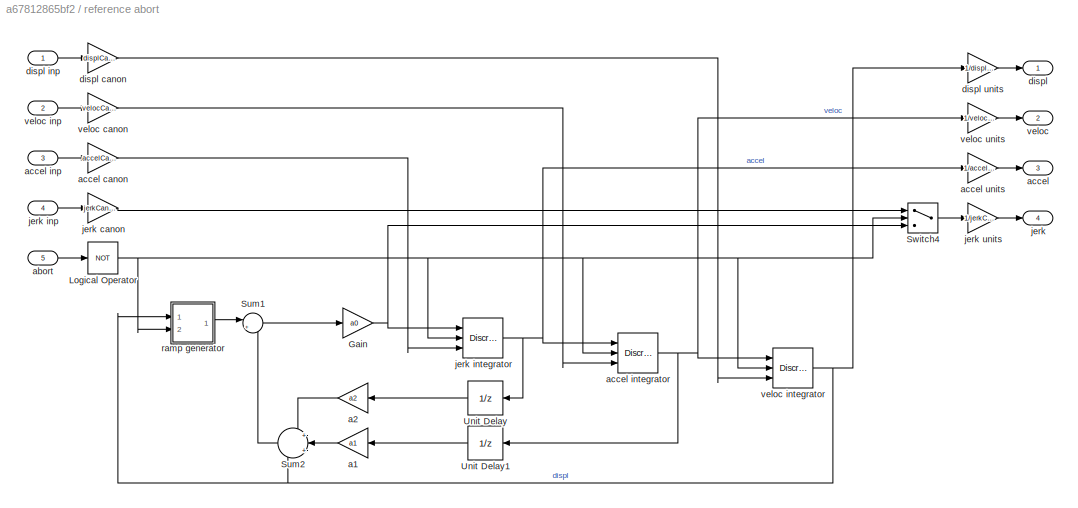
BLOCK [SubSystem] reference abort
  Ports = [5, 4]
  RequestExecContextInheritance = off
  Variant = off
BLOCK [Gain] reference abort/Gain
  Gain = a0
  OutDataTypeStr = Inherit: Inherit via internal rule
  ParamDataTypeStr = Inherit: Inherit via internal rule
  SaturateOnIntegerOverflow = off
BLOCK [Logic] reference abort/Logical Operator
  AllPortsSameDT = off
  Operator = NOT
  OutDataTypeStr = boolean
  Ports = [1, 1]
BLOCK [Sum] reference abort/Sum1
  IconShape = round
  InputSameDT = off
  Inputs = |+-
  OutDataTypeStr = Inherit: Inherit via internal rule
  Ports = [2, 1]
  SaturateOnIntegerOverflow = off
BLOCK [Sum] reference abort/Sum2
  IconShape = round
  InputSameDT = off
  Inputs = +|+|+
  OutDataTypeStr = Inherit: Inherit via internal rule
  Ports = [3, 1]
  SaturateOnIntegerOverflow = off
BLOCK [Switch] reference abort/Switch4
  Criteria = u2 ~= 0
  InputSameDT = off
  SaturateOnIntegerOverflow = off
  ZeroCross = off
BLOCK [UnitDelay] reference abort/Unit Delay
  SampleTime = -1
BLOCK [UnitDelay] reference abort/Unit Delay1
  SampleTime = -1
BLOCK [Gain] reference abort/a1
  Gain = a1
  OutDataTypeStr = Inherit: Inherit via internal rule
  ParamDataTypeStr = Inherit: Inherit via internal rule
  SaturateOnIntegerOverflow = off
BLOCK [Gain] reference abort/a2
  Gain = a2
  OutDataTypeStr = Inherit: Inherit via internal rule
  ParamDataTypeStr = Inherit: Inherit via internal rule
  SaturateOnIntegerOverflow = off
BLOCK [Inport] reference abort/abort
  IconDisplay = Port number
  Port = 5
BLOCK [Outport] reference abort/accel
  IconDisplay = Port number
  Port = 3
BLOCK [Gain] reference abort/accel canon
  Gain = accelCanon
  OutDataTypeStr = Inherit: Inherit via internal rule
  ParamDataTypeStr = Inherit: Inherit via internal rule
  SaturateOnIntegerOverflow = off
BLOCK [Inport] reference abort/accel inp
  IconDisplay = Port number
  Port = 3
BLOCK [DiscreteIntegrator] reference abort/accel integrator
  ExternalReset = level
  ICPrevOutput = DiscIntNeverNeededParam
  ICPrevScaledInput = DiscIntNeverNeededParam
  InitialConditionSource = external
  IntegratorMethod = Integration: Backward Euler
  Ports = [3, 1]
  SampleTime = -1
BLOCK [Gain] reference abort/accel units
  Gain = 1/accelCanon
  OutDataTypeStr = Inherit: Inherit via internal rule
  ParamDataTypeStr = Inherit: Inherit via internal rule
  SaturateOnIntegerOverflow = off
BLOCK [Outport] reference abort/displ
  IconDisplay = Port number
BLOCK [Gain] reference abort/displ canon
  Gain = displCanon
  OutDataTypeStr = Inherit: Inherit via internal rule
  ParamDataTypeStr = Inherit: Inherit via internal rule
  SaturateOnIntegerOverflow = off
BLOCK [Inport] reference abort/displ inp
  IconDisplay = Port number
BLOCK [Gain] reference abort/displ units
  Gain = 1/displCanon
  OutDataTypeStr = Inherit: Inherit via internal rule
  ParamDataTypeStr = Inherit: Inherit via internal rule
  SaturateOnIntegerOverflow = off
BLOCK [Outport] reference abort/jerk
  IconDisplay = Port number
  Port = 4
BLOCK [Gain] reference abort/jerk canon
  Gain = jerkCanon
  OutDataTypeStr = Inherit: Inherit via internal rule
  ParamDataTypeStr = Inherit: Inherit via internal rule
  SaturateOnIntegerOverflow = off
BLOCK [Inport] reference abort/jerk inp
  IconDisplay = Port number
  Port = 4
BLOCK [DiscreteIntegrator] reference abort/jerk integrator
  ExternalReset = level
  ICPrevOutput = DiscIntNeverNeededParam
  ICPrevScaledInput = DiscIntNeverNeededParam
  InitialConditionSource = external
  IntegratorMethod = Integration: Backward Euler
  Ports = [3, 1]
  SampleTime = -1
BLOCK [Gain] reference abort/jerk units
  Gain = 1/jerkCanon
  OutDataTypeStr = Inherit: Inherit via internal rule
  ParamDataTypeStr = Inherit: Inherit via internal rule
  SaturateOnIntegerOverflow = off
BLOCK [SubSystem] reference abort/ramp generator
  Ports = [2, 1]
  RequestExecContextInheritance = off
  Variant = off
BLOCK [Gain] reference abort/ramp generator/1//T
  Gain = 1/samplePeriod
  OutDataTypeStr = Inherit: Inherit via internal rule
  ParamDataTypeStr = Inherit: Inherit via internal rule
  SaturateOnIntegerOverflow = off
BLOCK [Reference] reference abort/ramp generator/Compare To Constant  REF=simulink/Logic and Bit
Operations/Compare
To Constant
  Ports = [1, 1]
  SourceBlock = simulink/Logic and Bit\nOperations/Compare\nTo Constant
  SourceType = Compare To Constant
BLOCK [Constant] reference abort/ramp generator/Constant1
  Value = 0
BLOCK [Constant] reference abort/ramp generator/Constant2
  Value = mode
BLOCK [Logic] reference abort/ramp generator/Logical Operator
  AllPortsSameDT = off
  Operator = OR
  OutDataTypeStr = boolean
  Ports = [2, 1]
BLOCK [MultiPortSwitch] reference abort/ramp generator/Multiport Switch
  DataPortOrder = Zero-based contiguous
  InputSameDT = off
  Ports = [4, 1]
  SaturateOnIntegerOverflow = off
  zeroidx = on
BLOCK [Inport] reference abort/ramp generator/abort
  IconDisplay = Port number
  Port = 2
BLOCK [Inport] reference abort/ramp generator/inp
  IconDisplay = Port number
BLOCK [Outport] reference abort/ramp generator/out
  IconDisplay = Port number
BLOCK [DiscreteIntegrator] reference abort/ramp generator/ramp integrator
  ExternalReset = level
  ICPrevOutput = DiscIntNeverNeededParam
  ICPrevScaledInput = DiscIntNeverNeededParam
  InitialConditionSource = external
  Ports = [3, 1]
  SampleTime = -1
BLOCK [Saturate] reference abort/ramp generator/ramp limit
  InputPortMap = u0
  LowerLimit = -rate*velocCanon
  Ports = [1, 1]
  UpperLimit = rate*velocCanon
BLOCK [SubSystem] reference abort/ramp generator/sample//hold
  Ports = [1, 1, 1]
  RequestExecContextInheritance = off
  TreatAsAtomicUnit = on
  Variant = off
BLOCK [EnablePort] reference abort/ramp generator/sample//hold/Enable
  Ports = []
BLOCK [Inport] reference abort/ramp generator/sample//hold/inp
  IconDisplay = Port number
BLOCK [Outport] reference abort/ramp generator/sample//hold/out
  IconDisplay = Port number
BLOCK [Sum] reference abort/ramp generator/sum4
  IconShape = round
  InputSameDT = off
  Inputs = |+-
  OutDataTypeStr = Inherit: Inherit via internal rule
  Ports = [2, 1]
  SaturateOnIntegerOverflow = off
BLOCK [Outport] reference abort/veloc
  IconDisplay = Port number
  Port = 2
BLOCK [Gain] reference abort/veloc canon
  Gain = velocCanon
  OutDataTypeStr = Inherit: Inherit via internal rule
  ParamDataTypeStr = Inherit: Inherit via internal rule
  SaturateOnIntegerOverflow = off
BLOCK [Inport] reference abort/veloc inp
  IconDisplay = Port number
  Port = 2
BLOCK [DiscreteIntegrator] reference abort/veloc integrator
  ExternalReset = level
  ICPrevOutput = DiscIntNeverNeededParam
  ICPrevScaledInput = DiscIntNeverNeededParam
  InitialConditionSource = external
  Ports = [3, 1]
  SampleTime = -1
BLOCK [Gain] reference abort/veloc units
  Gain = 1/velocCanon
  OutDataTypeStr = Inherit: Inherit via internal rule
  ParamDataTypeStr = Inherit: Inherit via internal rule
  SaturateOnIntegerOverflow = off
BLOCK [SubSystem] reference generator
  Ports = [1, 4]
  RequestExecContextInheritance = off
  Variant = off
BLOCK [Sum] reference generator/Sum
  IconShape = round
  InputSameDT = off
  Inputs = |+-
  OutDataTypeStr = Inherit: Inherit via internal rule
  Ports = [2, 1]
  SaturateOnIntegerOverflow = off
BLOCK [Sum] reference generator/Sum1
  IconShape = round
  InputSameDT = off
  Inputs = +|+|+
  OutDataTypeStr = Inherit: Inherit via internal rule
  Ports = [3, 1]
  SaturateOnIntegerOverflow = off
BLOCK [UnitDelay] reference generator/Unit Delay
  SampleTime = -1
BLOCK [Gain] reference generator/a0
  Gain = a0
  OutDataTypeStr = Inherit: Inherit via internal rule
  ParamDataTypeStr = Inherit: Inherit via internal rule
  SaturateOnIntegerOverflow = off
BLOCK [Gain] reference generator/a1
  Gain = a1
  OutDataTypeStr = Inherit: Inherit via internal rule
  ParamDataTypeStr = Inherit: Inherit via internal rule
  SaturateOnIntegerOverflow = off
BLOCK [Gain] reference generator/a2
  Gain = a2
  OutDataTypeStr = Inherit: Inherit via internal rule
  ParamDataTypeStr = Inherit: Inherit via internal rule
  SaturateOnIntegerOverflow = off
BLOCK [Outport] reference generator/accel
  IconDisplay = Port number
  Port = 3
BLOCK [Gain] reference generator/accel units
  Gain = 1/accelCanon
  OutDataTypeStr = Inherit: Inherit via internal rule
  ParamDataTypeStr = Inherit: Inherit via internal rule
  SaturateOnIntegerOverflow = off
BLOCK [Gain] reference generator/b
  Gain = b
  OutDataTypeStr = Inherit: Inherit via internal rule
  ParamDataTypeStr = Inherit: Inherit via internal rule
  SaturateOnIntegerOverflow = off
BLOCK [Gain] reference generator/canon
  Gain = canon
  OutDataTypeStr = Inherit: Inherit via internal rule
  ParamDataTypeStr = Inherit: Inherit via internal rule
  SaturateOnIntegerOverflow = off
BLOCK [Reference] reference generator/derivative  REF=LibControllers/euler derivative
  Ports = [1, 1]
  SourceBlock = LibControllers/euler derivative
  SourceType = Discrete Euler Derivative
BLOCK [Outport] reference generator/displ
  IconDisplay = Port number
BLOCK [Gain] reference generator/displ units
  Gain = 1/displCanon
  OutDataTypeStr = Inherit: Inherit via internal rule
  ParamDataTypeStr = Inherit: Inherit via internal rule
  SaturateOnIntegerOverflow = off
BLOCK [Gain] reference generator/gain
  Gain = mode~=1
  OutDataTypeStr = Inherit: Inherit via internal rule
  ParamDataTypeStr = Inherit: Inherit via internal rule
  SaturateOnIntegerOverflow = off
BLOCK [Inport] reference generator/inp
  IconDisplay = Port number
BLOCK [Reference] reference generator/integrator 0  REF=LibControllers/bilinear integrator
  Ports = [1, 1]
  SourceBlock = LibControllers/bilinear integrator
  SourceType = Discrete Bilinear Integrator
BLOCK [Reference] reference generator/integrator 1  REF=LibControllers/bilinear integrator
  Ports = [1, 1]
  SourceBlock = LibControllers/bilinear integrator
  SourceType = Discrete Bilinear Integrator
BLOCK [Reference] reference generator/integrator 2  REF=LibControllers/bilinear integrator
  Ports = [1, 1]
  SourceBlock = LibControllers/bilinear integrator
  SourceType = Discrete Bilinear Integrator
BLOCK [Outport] reference generator/jerk
  IconDisplay = Port number
  Port = 4
BLOCK [Gain] reference generator/jerk units
  Gain = 1/jerkCanon
  OutDataTypeStr = Inherit: Inherit via internal rule
  ParamDataTypeStr = Inherit: Inherit via internal rule
  SaturateOnIntegerOverflow = off
BLOCK [Outport] reference generator/veloc
  IconDisplay = Port number
  Port = 2
BLOCK [Gain] reference generator/veloc units
  Gain = 1/velocCanon
  OutDataTypeStr = Inherit: Inherit via internal rule
  ParamDataTypeStr = Inherit: Inherit via internal rule
  SaturateOnIntegerOverflow = off
BLOCK [SubSystem] reference smoother
  Ports = [4, 4]
  RequestExecContextInheritance = off
  Variant = off
BLOCK [Sum] reference smoother/Sum
  IconShape = round
  InputSameDT = off
  Inputs = |+-
  OutDataTypeStr = Inherit: Inherit via internal rule
  Ports = [2, 1]
  SaturateOnIntegerOverflow = off
BLOCK [Sum] reference smoother/Sum1
  IconShape = round
  InputSameDT = off
  Inputs = |+-
  OutDataTypeStr = Inherit: Inherit via internal rule
  Ports = [2, 1]
  SaturateOnIntegerOverflow = off
BLOCK [Sum] reference smoother/Sum2
  IconShape = round
  InputSameDT = off
  Inputs = |++
  OutDataTypeStr = Inherit: Inherit via internal rule
  Ports = [2, 1]
  SaturateOnIntegerOverflow = off
BLOCK [Sum] reference smoother/Sum3
  IconShape = round
  InputSameDT = off
  Inputs = |++
  OutDataTypeStr = Inherit: Inherit via internal rule
  Ports = [2, 1]
  SaturateOnIntegerOverflow = off
BLOCK [Sum] reference smoother/Sum4
  IconShape = round
  InputSameDT = off
  Inputs = |+-
  OutDataTypeStr = Inherit: Inherit via internal rule
  Ports = [2, 1]
  SaturateOnIntegerOverflow = off
BLOCK [Sum] reference smoother/Sum5
  IconShape = round
  InputSameDT = off
  Inputs = |++
  OutDataTypeStr = Inherit: Inherit via internal rule
  Ports = [2, 1]
  SaturateOnIntegerOverflow = off
BLOCK [Outport] reference smoother/accel
  IconDisplay = Port number
  Port = 3
BLOCK [Gain] reference smoother/accel canon
  Gain = accelCanon
  OutDataTypeStr = Inherit: Inherit via internal rule
  ParamDataTypeStr = Inherit: Inherit via internal rule
  SaturateOnIntegerOverflow = off
BLOCK [Inport] reference smoother/accel inp
  IconDisplay = Port number
  Port = 3
BLOCK [Reference] reference smoother/accel integrator  REF=LibControllers/forward euler integrator
  Ports = [1, 1]
  SourceBlock = LibControllers/forward euler integrator
  SourceType = Discrete Forward Euler Integrator
BLOCK [Gain] reference smoother/accel units
  Gain = 1/accelCanon
  OutDataTypeStr = Inherit: Inherit via internal rule
  ParamDataTypeStr = Inherit: Inherit via internal rule
  SaturateOnIntegerOverflow = off
BLOCK [Outport] reference smoother/displ
  IconDisplay = Port number
BLOCK [Gain] reference smoother/displ canon
  Gain = displCanon
  OutDataTypeStr = Inherit: Inherit via internal rule
  ParamDataTypeStr = Inherit: Inherit via internal rule
  SaturateOnIntegerOverflow = off
BLOCK [Inport] reference smoother/displ inp
  IconDisplay = Port number
BLOCK [Gain] reference smoother/displ units
  Gain = 1/displCanon
  OutDataTypeStr = Inherit: Inherit via internal rule
  ParamDataTypeStr = Inherit: Inherit via internal rule
  SaturateOnIntegerOverflow = off
BLOCK [Outport] reference smoother/jerk
  IconDisplay = Port number
  Port = 4
BLOCK [Gain] reference smoother/jerk canon
  Gain = jerkCanon
  OutDataTypeStr = Inherit: Inherit via internal rule
  ParamDataTypeStr = Inherit: Inherit via internal rule
  SaturateOnIntegerOverflow = off
BLOCK [Inport] reference smoother/jerk inp
  IconDisplay = Port number
  Port = 4
BLOCK [Reference] reference smoother/jerk integrator  REF=LibControllers/forward euler integrator
  Ports = [1, 1]
  SourceBlock = LibControllers/forward euler integrator
  SourceType = Discrete Forward Euler Integrator
BLOCK [Gain] reference smoother/jerk units
  Gain = 1/jerkCanon
  OutDataTypeStr = Inherit: Inherit via internal rule
  ParamDataTypeStr = Inherit: Inherit via internal rule
  SaturateOnIntegerOverflow = off
BLOCK [Gain] reference smoother/k1
  Gain = k
  OutDataTypeStr = Inherit: Inherit via internal rule
  ParamDataTypeStr = Inherit: Inherit via internal rule
  SaturateOnIntegerOverflow = off
BLOCK [Gain] reference smoother/k2
  Gain = k
  OutDataTypeStr = Inherit: Inherit via internal rule
  ParamDataTypeStr = Inherit: Inherit via internal rule
  SaturateOnIntegerOverflow = off
BLOCK [Gain] reference smoother/k3
  Gain = k
  OutDataTypeStr = Inherit: Inherit via internal rule
  ParamDataTypeStr = Inherit: Inherit via internal rule
  SaturateOnIntegerOverflow = off
BLOCK [UnitDelay] reference smoother/unit delay
  SampleTime = -1
BLOCK [Outport] reference smoother/veloc
  IconDisplay = Port number
  Port = 2
BLOCK [Gain] reference smoother/veloc canon
  Gain = velocCanon
  OutDataTypeStr = Inherit: Inherit via internal rule
  ParamDataTypeStr = Inherit: Inherit via internal rule
  SaturateOnIntegerOverflow = off
BLOCK [Inport] reference smoother/veloc inp
  IconDisplay = Port number
  Port = 2
BLOCK [Reference] reference smoother/veloc integrator  REF=LibControllers/forward euler integrator
  Ports = [1, 1]
  SourceBlock = LibControllers/forward euler integrator
  SourceType = Discrete Forward Euler Integrator
BLOCK [Gain] reference smoother/veloc units
  Gain = 1/velocCanon
  OutDataTypeStr = Inherit: Inherit via internal rule
  ParamDataTypeStr = Inherit: Inherit via internal rule
  SaturateOnIntegerOverflow = off
BLOCK [SubSystem] second-order butterworth highpass filter
  Ports = [1, 1]
  RequestExecContextInheritance = off
  Variant = off
BLOCK [DiscreteFilter] second-order butterworth highpass filter/Discrete Filter
  Denominator = a
  InputPortMap = u0
  Numerator = b
  Ports = [1, 1]
BLOCK [Inport] second-order butterworth highpass filter/inp
  IconDisplay = Port number
BLOCK [Outport] second-order butterworth highpass filter/out
  IconDisplay = Port number
BLOCK [SubSystem] second-order butterworth lowpass filter
  Ports = [1, 1]
  RequestExecContextInheritance = off
  Variant = off
BLOCK [DiscreteFilter] second-order butterworth lowpass filter/Discrete Filter
  Denominator = a
  InputPortMap = u0
  Numerator = b
  Ports = [1, 1]
BLOCK [Inport] second-order butterworth lowpass filter/inp
  IconDisplay = Port number
BLOCK [Outport] second-order butterworth lowpass filter/out
  IconDisplay = Port number
BLOCK [SubSystem] second-order inverse lowpass filter
  Ports = [1, 1]
  RequestExecContextInheritance = off
  Variant = off
BLOCK [DiscreteFilter] second-order inverse lowpass filter/discrete filter
  Denominator = a
  InputPortMap = u0
  Numerator = b
  Ports = [1, 1]
BLOCK [Inport] second-order inverse lowpass filter/inp
  IconDisplay = Port number
BLOCK [Outport] second-order inverse lowpass filter/out
  IconDisplay = Port number
BLOCK [SubSystem] second-order lowpass filter
  Ports = [1, 1]
  RequestExecContextInheritance = off
  Variant = off
BLOCK [DiscreteFilter] second-order lowpass filter/discrete filter
  Denominator = a
  InputPortMap = u0
  Numerator = b
  Ports = [1, 1]
BLOCK [Inport] second-order lowpass filter/inp
  IconDisplay = Port number
BLOCK [Outport] second-order lowpass filter/out
  IconDisplay = Port number
BLOCK [SubSystem] slope estimator
  Ports = [2, 1]
  RequestExecContextInheritance = off
  Variant = off
BLOCK [Product] slope estimator/Divide
  InputSameDT = off
  Inputs = */
  OutDataTypeStr = Inherit: Inherit via internal rule
  Ports = [2, 1]
  RndMeth = Floor
  SaturateOnIntegerOverflow = off
BLOCK [Product] slope estimator/Divide1
  InputSameDT = off
  Inputs = **/
  OutDataTypeStr = Inherit: Inherit via internal rule
  Ports = [3, 1]
  RndMeth = Floor
  SaturateOnIntegerOverflow = off
BLOCK [MinMax] slope estimator/MinMax
  Function = max
  InputSameDT = off
  Inputs = 2
  Ports = [2, 1]
  SaturateOnIntegerOverflow = off
BLOCK [Product] slope estimator/Product
  InputSameDT = off
  OutDataTypeStr = Inherit: Inherit via internal rule
  Ports = [2, 1]
  SaturateOnIntegerOverflow = off
BLOCK [Product] slope estimator/Product1
  InputSameDT = off
  OutDataTypeStr = Inherit: Inherit via internal rule
  Ports = [2, 1]
  SaturateOnIntegerOverflow = off
BLOCK [Product] slope estimator/Product2
  InputSameDT = off
  OutDataTypeStr = Inherit: Inherit via internal rule
  Ports = [2, 1]
  SaturateOnIntegerOverflow = off
BLOCK [Product] slope estimator/Product3
  InputSameDT = off
  OutDataTypeStr = Inherit: Inherit via internal rule
  Ports = [2, 1]
  SaturateOnIntegerOverflow = off
BLOCK [Product] slope estimator/Product4
  InputSameDT = off
  OutDataTypeStr = Inherit: Inherit via internal rule
  Ports = [2, 1]
  SaturateOnIntegerOverflow = off
BLOCK [Saturate] slope estimator/Saturation
  InputPortMap = u0
  LowerLimit = minSlope
  Ports = [1, 1]
  UpperLimit = maxSlope
BLOCK [Sum] slope estimator/Sum
  IconShape = round
  InputSameDT = off
  Inputs = |++
  OutDataTypeStr = Inherit: Inherit via internal rule
  Ports = [2, 1]
  SaturateOnIntegerOverflow = off
BLOCK [Sum] slope estimator/Sum1
  IconShape = round
  InputSameDT = off
  Inputs = |++
  OutDataTypeStr = Inherit: Inherit via internal rule
  Ports = [2, 1]
  SaturateOnIntegerOverflow = off
BLOCK [Sum] slope estimator/Sum2
  IconShape = round
  InputSameDT = off
  Inputs = |+-
  OutDataTypeStr = Inherit: Inherit via internal rule
  Ports = [2, 1]
  SaturateOnIntegerOverflow = off
BLOCK [Sum] slope estimator/Sum3
  IconShape = round
  InputSameDT = off
  Inputs = |+-
  OutDataTypeStr = Inherit: Inherit via internal rule
  Ports = [2, 1]
  SaturateOnIntegerOverflow = off
BLOCK [UnitDelay] slope estimator/Unit Delay
  InitialCondition = slope0
  InputProcessing = Elements as channels (sample based)
  SampleTime = -1
BLOCK [UnitDelay] slope estimator/Unit Delay1
  InitialCondition = errcov0
  InputProcessing = Elements as channels (sample based)
  SampleTime = -1
BLOCK [Constant] slope estimator/forgetting factor
  Value = forget
BLOCK [Constant] slope estimator/realmin
  Value = realmin
BLOCK [Outport] slope estimator/slope
  IconDisplay = Port number
BLOCK [Constant] slope estimator/unity
BLOCK [Inport] slope estimator/x
  IconDisplay = Port number
BLOCK [Inport] slope estimator/y
  IconDisplay = Port number
  Port = 2
BLOCK [SubSystem] sweep fg
  Ports = [1, 2]
  RequestExecContextInheritance = off
  Variant = off
BLOCK [SubSystem] sweep fg (6 DOF)
  Ports = [1, 2]
  RequestExecContextInheritance = off
  Variant = off
BLOCK [Mux] sweep fg (6 DOF)/Mux
  DisplayOption = bar
  Inputs = 2
  Ports = [2, 1]
BLOCK [Mux] sweep fg (6 DOF)/Mux1
  DisplayOption = bar
  Inputs = 6
  Ports = [6, 1]
BLOCK [Product] sweep fg (6 DOF)/Product2
  InputSameDT = off
  OutDataTypeStr = Inherit: Inherit via internal rule
  Ports = [2, 1]
  SaturateOnIntegerOverflow = off
BLOCK [Selector] sweep fg (6 DOF)/dof sel
  IndexOptions = Index vector (dialog)
  Indices = dof
  OutputSizes = 1
  Ports = [1, 1]
BLOCK [Inport] sweep fg (6 DOF)/dwell
  IconDisplay = Port number
BLOCK [Outport] sweep fg (6 DOF)/freq
  IconDisplay = Port number
  Port = 2
BLOCK [Outport] sweep fg (6 DOF)/out
  IconDisplay = Port number
BLOCK [Selector] sweep fg (6 DOF)/sel1
  IndexOptions = Index vector (dialog)
  Indices = (id==1)+1
  InputPortWidth = 2
  OutputSizes = 1
  Ports = [1, 1]
BLOCK [Selector] sweep fg (6 DOF)/sel2
  IndexOptions = Index vector (dialog)
  Indices = (id==2)+1
  InputPortWidth = 2
  OutputSizes = 1
  Ports = [1, 1]
BLOCK [Selector] sweep fg (6 DOF)/sel3
  IndexOptions = Index vector (dialog)
  Indices = (id==3)+1
  InputPortWidth = 2
  OutputSizes = 1
  Ports = [1, 1]
BLOCK [Selector] sweep fg (6 DOF)/sel4
  IndexOptions = Index vector (dialog)
  Indices = (id==4)+1
  InputPortWidth = 2
  OutputSizes = 1
  Ports = [1, 1]
BLOCK [Selector] sweep fg (6 DOF)/sel5
  IndexOptions = Index vector (dialog)
  Indices = (id==5)+1
  InputPortWidth = 2
  OutputSizes = 1
  Ports = [1, 1]
BLOCK [Selector] sweep fg (6 DOF)/sel6
  IndexOptions = Index vector (dialog)
  Indices = (id==6)+1
  InputPortWidth = 2
  OutputSizes = 1
  Ports = [1, 1]
BLOCK [Reference] sweep fg (6 DOF)/span fg  REF=LibControllers/ramp fg
  Ports = [0, 1]
  SourceBlock = LibControllers/ramp fg
  SourceType = Ramp Function Generator
BLOCK [SubSystem] sweep fg (6 DOF)/sweep fg
  Ports = [1, 2]
  RequestExecContextInheritance = off
  Variant = off
BLOCK [Logic] sweep fg (6 DOF)/sweep fg/Logical Operator
  AllPortsSameDT = off
  Operator = NOT
  OutDataTypeStr = boolean
  Ports = [1, 1]
BLOCK [Product] sweep fg (6 DOF)/sweep fg/Product
  InputSameDT = off
  OutDataTypeStr = Inherit: Inherit via internal rule
  Ports = [2, 1]
  SaturateOnIntegerOverflow = off
BLOCK [Product] sweep fg (6 DOF)/sweep fg/Product1
  InputSameDT = off
  OutDataTypeStr = Inherit: Inherit via internal rule
  Ports = [2, 1]
  SaturateOnIntegerOverflow = off
BLOCK [Saturate] sweep fg (6 DOF)/sweep fg/Saturation
  InputPortMap = u0
  LowerLimit = min(initialFreq, finalFreq)
  Ports = [1, 1]
  UpperLimit = max(initialFreq, finalFreq)
BLOCK [Sum] sweep fg (6 DOF)/sweep fg/Sum1
  IconShape = round
  Inputs = |++
  Ports = [2, 1]
BLOCK [Sum] sweep fg (6 DOF)/sweep fg/Sum2
  IconShape = round
  Inputs = |++
  Ports = [2, 1]
BLOCK [UnitDelay] sweep fg (6 DOF)/sweep fg/Unit Delay1
  InitialCondition = initialFreq
  SampleTime = -1
BLOCK [Gain] sweep fg (6 DOF)/sweep fg/ddf
  Gain = ddf
  OutDataTypeStr = Inherit: Inherit via internal rule
  ParamDataTypeStr = Inherit: Inherit via internal rule
  SaturateOnIntegerOverflow = off
BLOCK [Constant] sweep fg (6 DOF)/sweep fg/df
  Value = df
BLOCK [Inport] sweep fg (6 DOF)/sweep fg/dwell
  IconDisplay = Port number
BLOCK [Outport] sweep fg (6 DOF)/sweep fg/freq
  IconDisplay = Port number
  Port = 2
BLOCK [Outport] sweep fg (6 DOF)/sweep fg/out
  IconDisplay = Port number
BLOCK [Reference] sweep fg (6 DOF)/sweep fg/span fg  REF=LibControllers/ramp fg
  Ports = [0, 1]
  SourceBlock = LibControllers/ramp fg
  SourceType = Ramp Function Generator
BLOCK [Reference] sweep fg (6 DOF)/sweep fg/variable-frequency sine oscillator  REF=LibControllers/variable-frequency
sine oscillator
  Ports = [1, 1]
  SourceBlock = LibControllers/variable-frequency\nsine oscillator
  SourceType = Variable-Frequency Sine Oscillator
BLOCK [Constant] sweep fg (6 DOF)/zero
  Value = 0
BLOCK [Logic] sweep fg/Logical Operator
  AllPortsSameDT = off
  Operator = NOT
  OutDataTypeStr = boolean
  Ports = [1, 1]
BLOCK [Product] sweep fg/Product
  InputSameDT = off
  OutDataTypeStr = Inherit: Inherit via internal rule
  Ports = [2, 1]
  SaturateOnIntegerOverflow = off
BLOCK [Product] sweep fg/Product1
  InputSameDT = off
  OutDataTypeStr = Inherit: Inherit via internal rule
  Ports = [2, 1]
  SaturateOnIntegerOverflow = off
BLOCK [Saturate] sweep fg/Saturation
  InputPortMap = u0
  LowerLimit = min(initialFreq, finalFreq)
  Ports = [1, 1]
  UpperLimit = max(initialFreq, finalFreq)
BLOCK [Sum] sweep fg/Sum1
  IconShape = round
  Inputs = |++
  Ports = [2, 1]
BLOCK [Sum] sweep fg/Sum2
  IconShape = round
  Inputs = |++
  Ports = [2, 1]
BLOCK [UnitDelay] sweep fg/Unit Delay1
  InitialCondition = initialFreq
  SampleTime = -1
BLOCK [Gain] sweep fg/ddf
  Gain = ddf
  OutDataTypeStr = Inherit: Inherit via internal rule
  ParamDataTypeStr = Inherit: Inherit via internal rule
  SaturateOnIntegerOverflow = off
BLOCK [Constant] sweep fg/df
  Value = df
BLOCK [Inport] sweep fg/dwell
  IconDisplay = Port number
BLOCK [Outport] sweep fg/freq
  IconDisplay = Port number
  Port = 2
BLOCK [Outport] sweep fg/out
  IconDisplay = Port number
BLOCK [Reference] sweep fg/span fg  REF=LibControllers/ramp fg
  Ports = [0, 1]
  SourceBlock = LibControllers/ramp fg
  SourceType = Ramp Function Generator
BLOCK [Reference] sweep fg/variable-frequency sine oscillator  REF=LibControllers/variable-frequency
sine oscillator
  Ports = [1, 1]
  SourceBlock = LibControllers/variable-frequency\nsine oscillator
  SourceType = Variable-Frequency Sine Oscillator
BLOCK [SubSystem] tracking notch filter
  Ports = [2, 1]
  RequestExecContextInheritance = off
  Variant = off
BLOCK [Constant] tracking notch filter/Constant
BLOCK [Product] tracking notch filter/Divide
  InputSameDT = off
  Inputs = */
  OutDataTypeStr = Inherit: Inherit via internal rule
  Ports = [2, 1]
  RndMeth = Floor
  SaturateOnIntegerOverflow = off
BLOCK [Sum] tracking notch filter/Sum
  IconShape = round
  InputSameDT = off
  Inputs = |+-
  OutDataTypeStr = Inherit: Inherit via internal rule
  Ports = [2, 1]
  SaturateOnIntegerOverflow = off
BLOCK [Sum] tracking notch filter/Sum1
  IconShape = round
  InputSameDT = off
  Inputs = ++|
  OutDataTypeStr = Inherit: Inherit via internal rule
  Ports = [2, 1]
  SaturateOnIntegerOverflow = off
BLOCK [Sum] tracking notch filter/Sum2
  IconShape = round
  InputSameDT = off
  Inputs = ++|
  OutDataTypeStr = Inherit: Inherit via internal rule
  Ports = [2, 1]
  SaturateOnIntegerOverflow = off
BLOCK [Sum] tracking notch filter/Sum3
  IconShape = round
  InputSameDT = off
  Inputs = |+-
  OutDataTypeStr = Inherit: Inherit via internal rule
  Ports = [2, 1]
  SaturateOnIntegerOverflow = off
BLOCK [Sum] tracking notch filter/Sum4
  IconShape = round
  InputSameDT = off
  Inputs = ++|
  OutDataTypeStr = Inherit: Inherit via internal rule
  Ports = [2, 1]
  SaturateOnIntegerOverflow = off
BLOCK [Sum] tracking notch filter/Sum5
  IconShape = round
  InputSameDT = off
  Inputs = ++|
  OutDataTypeStr = Inherit: Inherit via internal rule
  Ports = [2, 1]
  SaturateOnIntegerOverflow = off
BLOCK [Sum] tracking notch filter/Sum6
  IconShape = round
  InputSameDT = off
  Inputs = +|+
  OutDataTypeStr = Inherit: Inherit via internal rule
  Ports = [2, 1]
  SaturateOnIntegerOverflow = off
BLOCK [Sum] tracking notch filter/Sum7
  IconShape = round
  InputSameDT = off
  Inputs = |+-
  OutDataTypeStr = Inherit: Inherit via internal rule
  Ports = [2, 1]
  SaturateOnIntegerOverflow = off
BLOCK [Sum] tracking notch filter/Sum8
  IconShape = round
  InputSameDT = off
  Inputs = |++
  OutDataTypeStr = Inherit: Inherit via internal rule
  Ports = [2, 1]
  SaturateOnIntegerOverflow = off
BLOCK [Trigonometry] tracking notch filter/Trigonometric Function
  Operator = cos
  Ports = [1, 1]
BLOCK [Trigonometry] tracking notch filter/Trigonometric Function1
  Operator = tan
  Ports = [1, 1]
BLOCK [UnitDelay] tracking notch filter/Unit Delay
  InputProcessing = Elements as channels (sample based)
  SampleTime = -1
BLOCK [UnitDelay] tracking notch filter/Unit Delay1
  InputProcessing = Elements as channels (sample based)
  SampleTime = -1
BLOCK [Inport] tracking notch filter/freq
  IconDisplay = Port number
  Port = 2
BLOCK [Inport] tracking notch filter/inp
  IconDisplay = Port number
BLOCK [Product] tracking notch filter/k1
  InputSameDT = off
  OutDataTypeStr = Inherit: Inherit via internal rule
  Ports = [2, 1]
  SaturateOnIntegerOverflow = off
BLOCK [Product] tracking notch filter/k2
  InputSameDT = off
  OutDataTypeStr = Inherit: Inherit via internal rule
  Ports = [2, 1]
  SaturateOnIntegerOverflow = off
BLOCK [Gain] tracking notch filter/neg
  Gain = -1
  OutDataTypeStr = Inherit: Inherit via internal rule
  ParamDataTypeStr = Inherit: Inherit via internal rule
  SaturateOnIntegerOverflow = off
BLOCK [Gain] tracking notch filter/normalized bandwidth times pi T
  Gain = pi * bw * samplePeriod
  OutDataTypeStr = Inherit: Inherit via internal rule
  ParamDataTypeStr = Inherit: Inherit via internal rule
  SaturateOnIntegerOverflow = off
BLOCK [Outport] tracking notch filter/out
  IconDisplay = Port number
BLOCK [Gain] tracking notch filter/two pi T
  Gain = 2*pi*samplePeriod
  OutDataTypeStr = Inherit: Inherit via internal rule
  ParamDataTypeStr = Inherit: Inherit via internal rule
  SaturateOnIntegerOverflow = off
BLOCK [Gain] tracking notch filter/w0
  Gain = gain + 0.5 * depth
  OutDataTypeStr = Inherit: Inherit via internal rule
  ParamDataTypeStr = Inherit: Inherit via internal rule
  SaturateOnIntegerOverflow = off
BLOCK [Gain] tracking notch filter/w1
  Gain = -0.5 * depth
  OutDataTypeStr = Inherit: Inherit via internal rule
  ParamDataTypeStr = Inherit: Inherit via internal rule
  SaturateOnIntegerOverflow = off
BLOCK [SubSystem] tvc controller
  Ports = [4, 2]
  RequestExecContextInheritance = off
  Variant = off
BLOCK [Inport] tvc controller/accel fbk
  IconDisplay = Port number
  Port = 3
BLOCK [Inport] tvc controller/displ fbk
  IconDisplay = Port number
  Port = 2
BLOCK [Inport] tvc controller/force fbk
  IconDisplay = Port number
  Port = 4
BLOCK [Outport] tvc controller/out
  IconDisplay = Port number
BLOCK [Inport] tvc controller/ref
  IconDisplay = Port number
BLOCK [Selector] tvc controller/sel1
  IndexOptions = Index vector (dialog)
  Indices = p.id
  OutputSizes = 1
  Ports = [1, 1]
BLOCK [Selector] tvc controller/sel5
  IndexOptions = Index vector (dialog)
  Indices = p.id
  OutputSizes = 1
  Ports = [1, 1]
BLOCK [Selector] tvc controller/sel6
  IndexOptions = Index vector (dialog)
  Indices = p.id
  OutputSizes = 1
  Ports = [1, 1]
BLOCK [Selector] tvc controller/sel7
  IndexOptions = Index vector (dialog)
  Indices = p.id
  OutputSizes = 1
  Ports = [1, 1]
BLOCK [Outport] tvc controller/testpoints
  IconDisplay = Port number
  Port = 2
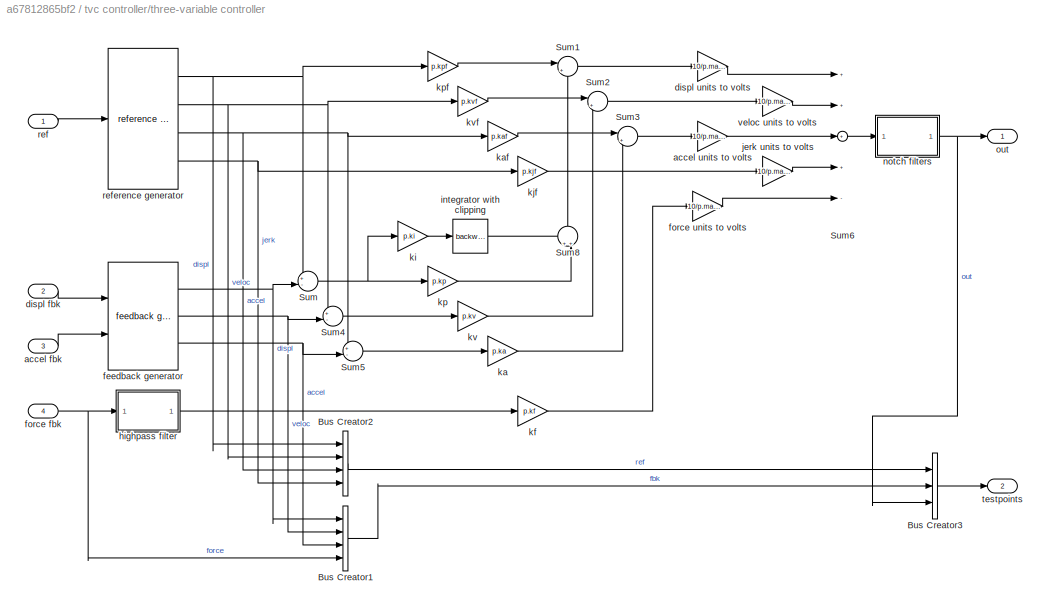
BLOCK [SubSystem] tvc controller/three-variable controller
  Ports = [4, 2]
  RequestExecContextInheritance = off
  Variant = off
BLOCK [BusCreator] tvc controller/three-variable controller/Bus Creator1
  DisplayOption = bar
  InheritFromInputs = on
  Inputs = 4
  Ports = [4, 1]
BLOCK [BusCreator] tvc controller/three-variable controller/Bus Creator2
  DisplayOption = bar
  InheritFromInputs = on
  Inputs = 4
  Ports = [4, 1]
BLOCK [BusCreator] tvc controller/three-variable controller/Bus Creator3
  DisplayOption = bar
  InheritFromInputs = on
  Inputs = 3
  Ports = [3, 1]
BLOCK [Sum] tvc controller/three-variable controller/Sum
  IconShape = round
  InputSameDT = off
  Inputs = +-|
  OutDataTypeStr = Inherit: Inherit via internal rule
  Ports = [2, 1]
  SaturateOnIntegerOverflow = off
BLOCK [Sum] tvc controller/three-variable controller/Sum1
  IconShape = round
  InputSameDT = off
  Inputs = |++
  OutDataTypeStr = Inherit: Inherit via internal rule
  Ports = [2, 1]
  SaturateOnIntegerOverflow = off
BLOCK [Sum] tvc controller/three-variable controller/Sum2
  IconShape = round
  InputSameDT = off
  Inputs = |++
  OutDataTypeStr = Inherit: Inherit via internal rule
  Ports = [2, 1]
  SaturateOnIntegerOverflow = off
BLOCK [Sum] tvc controller/three-variable controller/Sum3
  IconShape = round
  InputSameDT = off
  Inputs = |++
  OutDataTypeStr = Inherit: Inherit via internal rule
  Ports = [2, 1]
  SaturateOnIntegerOverflow = off
BLOCK [Sum] tvc controller/three-variable controller/Sum4
  IconShape = round
  InputSameDT = off
  Inputs = +-|
  OutDataTypeStr = Inherit: Inherit via internal rule
  Ports = [2, 1]
  SaturateOnIntegerOverflow = off
BLOCK [Sum] tvc controller/three-variable controller/Sum5
  IconShape = round
  InputSameDT = off
  Inputs = +-|
  OutDataTypeStr = Inherit: Inherit via internal rule
  Ports = [2, 1]
  SaturateOnIntegerOverflow = off
BLOCK [Sum] tvc controller/three-variable controller/Sum6
  InputSameDT = off
  Inputs = ++++-
  OutDataTypeStr = Inherit: Inherit via internal rule
  Ports = [5, 1]
  SaturateOnIntegerOverflow = off
BLOCK [Sum] tvc controller/three-variable controller/Sum8
  IconShape = round
  InputSameDT = off
  Inputs = ++|
  OutDataTypeStr = Inherit: Inherit via internal rule
  Ports = [2, 1]
  SaturateOnIntegerOverflow = off
BLOCK [Inport] tvc controller/three-variable controller/accel fbk
  IconDisplay = Port number
  Port = 3
BLOCK [Gain] tvc controller/three-variable controller/accel units to volts
  Gain = 10/p.maxAccel
  OutDataTypeStr = Inherit: Inherit via internal rule
  ParamDataTypeStr = Inherit: Inherit via internal rule
  SaturateOnIntegerOverflow = off
BLOCK [Inport] tvc controller/three-variable controller/displ fbk
  IconDisplay = Port number
  Port = 2
BLOCK [Gain] tvc controller/three-variable controller/displ units to volts
  Gain = 10/p.maxDispl
  OutDataTypeStr = Inherit: Inherit via internal rule
  ParamDataTypeStr = Inherit: Inherit via internal rule
  SaturateOnIntegerOverflow = off
BLOCK [Reference] tvc controller/three-variable controller/feedback generator  REF=LibControllers/feedback generator
  Ports = [2, 3]
  SourceBlock = LibControllers/feedback generator
  SourceType = Feedback Generator
BLOCK [Inport] tvc controller/three-variable controller/force fbk
  IconDisplay = Port number
  Port = 4
BLOCK [Gain] tvc controller/three-variable controller/force units to volts
  Gain = 10/p.maxForce
  OutDataTypeStr = Inherit: Inherit via internal rule
  ParamDataTypeStr = Inherit: Inherit via internal rule
  SaturateOnIntegerOverflow = off
BLOCK [SubSystem] tvc controller/three-variable controller/highpass filter
  Ports = [1, 1]
  RequestExecContextInheritance = off
  Variant = off
BLOCK [DiscreteFilter] tvc controller/three-variable controller/highpass filter/Discrete Filter
  Denominator = a
  InputPortMap = u0
  Numerator = b
  Ports = [1, 1]
BLOCK [Inport] tvc controller/three-variable controller/highpass filter/inp
  IconDisplay = Port number
BLOCK [Outport] tvc controller/three-variable controller/highpass filter/out
  IconDisplay = Port number
BLOCK [Reference] tvc controller/three-variable controller/integrator with clipping  REF=LibControllers/backward euler integrator
with clipping
  Ports = [1, 1]
  SourceBlock = LibControllers/backward euler integrator\nwith clipping
  SourceType = Discrete Backward Euler Integrator with Clipping
BLOCK [Gain] tvc controller/three-variable controller/jerk units to volts
  Gain = 10/p.maxJerk
  OutDataTypeStr = Inherit: Inherit via internal rule
  ParamDataTypeStr = Inherit: Inherit via internal rule
  SaturateOnIntegerOverflow = off
BLOCK [Gain] tvc controller/three-variable controller/ka
  Gain = p.ka
  OutDataTypeStr = Inherit: Inherit via internal rule
  ParamDataTypeStr = Inherit: Inherit via internal rule
  SaturateOnIntegerOverflow = off
BLOCK [Gain] tvc controller/three-variable controller/kaf
  Gain = p.kaf
  OutDataTypeStr = Inherit: Inherit via internal rule
  ParamDataTypeStr = Inherit: Inherit via internal rule
  SaturateOnIntegerOverflow = off
BLOCK [Gain] tvc controller/three-variable controller/kf
  Gain = p.kf
  OutDataTypeStr = Inherit: Inherit via internal rule
  ParamDataTypeStr = Inherit: Inherit via internal rule
  SaturateOnIntegerOverflow = off
BLOCK [Gain] tvc controller/three-variable controller/ki
  Gain = p.ki
  OutDataTypeStr = Inherit: Inherit via internal rule
  ParamDataTypeStr = Inherit: Inherit via internal rule
  SaturateOnIntegerOverflow = off
BLOCK [Gain] tvc controller/three-variable controller/kjf
  Gain = p.kjf
  OutDataTypeStr = Inherit: Inherit via internal rule
  ParamDataTypeStr = Inherit: Inherit via internal rule
  SaturateOnIntegerOverflow = off
BLOCK [Gain] tvc controller/three-variable controller/kp
  Gain = p.kp
  OutDataTypeStr = Inherit: Inherit via internal rule
  ParamDataTypeStr = Inherit: Inherit via internal rule
  SaturateOnIntegerOverflow = off
BLOCK [Gain] tvc controller/three-variable controller/kpf
  Gain = p.kpf
  OutDataTypeStr = Inherit: Inherit via internal rule
  ParamDataTypeStr = Inherit: Inherit via internal rule
  SaturateOnIntegerOverflow = off
BLOCK [Gain] tvc controller/three-variable controller/kv
  Gain = p.kv
  OutDataTypeStr = Inherit: Inherit via internal rule
  ParamDataTypeStr = Inherit: Inherit via internal rule
  SaturateOnIntegerOverflow = off
BLOCK [Gain] tvc controller/three-variable controller/kvf
  Gain = p.kvf
  OutDataTypeStr = Inherit: Inherit via internal rule
  ParamDataTypeStr = Inherit: Inherit via internal rule
  SaturateOnIntegerOverflow = off
BLOCK [SubSystem] tvc controller/three-variable controller/notch filters
  Ports = [1, 1]
  RequestExecContextInheritance = off
  Variant = off
BLOCK [Inport] tvc controller/three-variable controller/notch filters/inp
  IconDisplay = Port number
BLOCK [Reference] tvc controller/three-variable controller/notch filters/notch filter 1  REF=LibControllers/notch filter
  Ports = [1, 1]
  SourceBlock = LibControllers/notch filter
  SourceType = Notch Filter
BLOCK [Reference] tvc controller/three-variable controller/notch filters/notch filter 2  REF=LibControllers/notch filter
  Ports = [1, 1]
  SourceBlock = LibControllers/notch filter
  SourceType = Notch Filter
BLOCK [Reference] tvc controller/three-variable controller/notch filters/notch filter 3  REF=LibControllers/notch filter
  Ports = [1, 1]
  SourceBlock = LibControllers/notch filter
  SourceType = Notch Filter
BLOCK [Reference] tvc controller/three-variable controller/notch filters/notch filter 4  REF=LibControllers/notch filter
  Ports = [1, 1]
  SourceBlock = LibControllers/notch filter
  SourceType = Notch Filter
BLOCK [Reference] tvc controller/three-variable controller/notch filters/notch filter 5  REF=LibControllers/notch filter
  Ports = [1, 1]
  SourceBlock = LibControllers/notch filter
  SourceType = Notch Filter
BLOCK [Outport] tvc controller/three-variable controller/notch filters/out
  IconDisplay = Port number
BLOCK [Outport] tvc controller/three-variable controller/out
  IconDisplay = Port number
BLOCK [Inport] tvc controller/three-variable controller/ref
  IconDisplay = Port number
BLOCK [Reference] tvc controller/three-variable controller/reference generator  REF=LibControllers/reference generator
  Ports = [1, 4]
  SourceBlock = LibControllers/reference generator
  SourceType = Reference Generator
BLOCK [Outport] tvc controller/three-variable controller/testpoints
  IconDisplay = Port number
  Port = 2
BLOCK [Gain] tvc controller/three-variable controller/veloc units to volts
  Gain = 10/p.maxVeloc
  OutDataTypeStr = Inherit: Inherit via internal rule
  ParamDataTypeStr = Inherit: Inherit via internal rule
  SaturateOnIntegerOverflow = off
BLOCK [SubSystem] variable-frequency sine oscillator
  Ports = [1, 1]
  RequestExecContextInheritance = off
  Variant = off
BLOCK [Gain] variable-frequency sine oscillator/Hz to rad//s
  Gain = 2*pi
  OutDataTypeStr = Inherit: Inherit via internal rule
  ParamDataTypeStr = Inherit: Inherit via internal rule
  SaturateOnIntegerOverflow = off
BLOCK [Sin] variable-frequency sine oscillator/Sine Wave Function
  Amplitude = amplitude
  Ports = [1, 1]
  SampleTime = 0
  TimeSource = Use external signal
BLOCK [Sum] variable-frequency sine oscillator/Sum1
  IconShape = round
  Inputs = |++
  Ports = [2, 1]
BLOCK [Gain] variable-frequency sine oscillator/T
  Gain = samplePeriod
  OutDataTypeStr = Inherit: Inherit via internal rule
  ParamDataTypeStr = Inherit: Inherit via internal rule
  SaturateOnIntegerOverflow = off
BLOCK [UnitDelay] variable-frequency sine oscillator/Unit Delay1
  SampleTime = -1
BLOCK [Inport] variable-frequency sine oscillator/freq
  IconDisplay = Port number
BLOCK [Outport] variable-frequency sine oscillator/out
  IconDisplay = Port number
BLOCK [SubSystem] variable-frequency sine oscillator/phase wrap
  Ports = [1, 1]
  RequestExecContextInheritance = off
  Variant = off
BLOCK [Constant] variable-frequency sine oscillator/phase wrap/Constant
  Value = 2*pi
BLOCK [RelationalOperator] variable-frequency sine oscillator/phase wrap/Relational Operator
  InputSameDT = off
  Operator = >
  OutDataTypeStr = boolean
  Ports = [2, 1]
BLOCK [Sum] variable-frequency sine oscillator/phase wrap/Sum
  IconShape = round
  InputSameDT = off
  Inputs = |+-
  OutDataTypeStr = Inherit: Inherit via internal rule
  Ports = [2, 1]
  SaturateOnIntegerOverflow = off
BLOCK [Switch] variable-frequency sine oscillator/phase wrap/Switch
  Criteria = u2 ~= 0
  InputSameDT = off
  SaturateOnIntegerOverflow = off
BLOCK [Inport] variable-frequency sine oscillator/phase wrap/inp
  IconDisplay = Port number
BLOCK [Outport] variable-frequency sine oscillator/phase wrap/out
  IconDisplay = Port number
ANNOTATION (root): 1 DOF FUNCTION GENERATORS
ANNOTATION (root): 6 DOF FUNCTION GENERATORS
ANNOTATION (root): CONTROLLER FILTERS
ANNOTATION (root): DIFFERENTIATORS
ANNOTATION (root): INTEGRATORS
ANNOTATION (root): MISC COMPENSATORS
ANNOTATION (root): MISCELLANEOUS
ANNOTATION (root): OBSERVERS
ANNOTATION (root): PID CONTROLLERS
ANNOTATION (root): THREE-VARIABLE CONTROLLERS
ANNOTATION feedback generator: state0
ANNOTATION feedback generator: state1
ANNOTATION feedback generator: state2
ANNOTATION feedback generator: state3
ANNOTATION feedback generator: state4
ANNOTATION feedback generator: state5
ANNOTATION slope estimator: L
NET backward euler integrator with clipping/Saturation:1 -> backward euler integrator with clipping/Unit Delay1:1, backward euler integrator with clipping/out:1
LINE backward euler integrator with clipping/Sum1:1 -> backward euler integrator with clipping/Saturation:1
LINE backward euler integrator with clipping/T:1 -> backward euler integrator with clipping/Sum1:1
LINE backward euler integrator with clipping/Unit Delay1:1 -> backward euler integrator with clipping/Sum1:2
LINE backward euler integrator with clipping/inp:1 -> backward euler integrator with clipping/T:1
NET backward euler integrator/Sum1:1 -> backward euler integrator/Unit Delay1:1, backward euler integrator/out:1
LINE backward euler integrator/T:1 -> backward euler integrator/Sum1:1
LINE backward euler integrator/Unit Delay1:1 -> backward euler integrator/Sum1:2
LINE backward euler integrator/inp:1 -> backward euler integrator/T:1
LINE bilinear derivative/(1+decay)//T:1 -> bilinear derivative/Sum1:1
LINE bilinear derivative/-decay:1 -> bilinear derivative/Sum1:2
NET bilinear derivative/Sum1:1 -> bilinear derivative/Unit Delay1:1, bilinear derivative/out:1
LINE bilinear derivative/Sum:1 -> bilinear derivative/(1+decay)//T:1
LINE bilinear derivative/Unit Delay1:1 -> bilinear derivative/-decay:1
LINE bilinear derivative/Unit Delay:1 -> bilinear derivative/Sum:2
NET bilinear derivative/inp:1 -> bilinear derivative/Sum:1, bilinear derivative/Unit Delay:1
NET bilinear integrator with clipping/Saturation:1 -> bilinear integrator with clipping/Unit Delay1:1, bilinear integrator with clipping/out:1
LINE bilinear integrator with clipping/Sum1:1 -> bilinear integrator with clipping/Saturation:1
LINE bilinear integrator with clipping/Sum:1 -> bilinear integrator with clipping/T//2:1
LINE bilinear integrator with clipping/T//2:1 -> bilinear integrator with clipping/Sum1:1
LINE bilinear integrator with clipping/Unit Delay1:1 -> bilinear integrator with clipping/Sum1:2
LINE bilinear integrator with clipping/Unit Delay:1 -> bilinear integrator with clipping/Sum:2
NET bilinear integrator with clipping/inp:1 -> bilinear integrator with clipping/Sum:1, bilinear integrator with clipping/Unit Delay:1
NET bilinear integrator/Sum1:1 -> bilinear integrator/Unit Delay1:1, bilinear integrator/out:1
LINE bilinear integrator/Sum:1 -> bilinear integrator/T//2:1
LINE bilinear integrator/T//2:1 -> bilinear integrator/Sum1:1
LINE bilinear integrator/Unit Delay1:1 -> bilinear integrator/Sum1:2
LINE bilinear integrator/Unit Delay:1 -> bilinear integrator/Sum:2
NET bilinear integrator/inp:1 -> bilinear integrator/Sum:1, bilinear integrator/Unit Delay:1
LINE butterworth lowpass filter/biquad group 1/biquad 1:1 -> butterworth lowpass filter/biquad group 1/biquad 2:1
LINE butterworth lowpass filter/biquad group 1/biquad 2:1 -> butterworth lowpass filter/biquad group 1/biquad 3:1
LINE butterworth lowpass filter/biquad group 1/biquad 3:1 -> butterworth lowpass filter/biquad group 1/biquad 4:1
LINE butterworth lowpass filter/biquad group 1/biquad 4:1 -> butterworth lowpass filter/biquad group 1/biquad 5:1
LINE butterworth lowpass filter/biquad group 1/biquad 5:1 -> butterworth lowpass filter/biquad group 1/out:1
LINE butterworth lowpass filter/biquad group 1/inp:1 -> butterworth lowpass filter/biquad group 1/biquad 1:1
LINE butterworth lowpass filter/biquad group 1:1 -> butterworth lowpass filter/biquad group 2:1
LINE butterworth lowpass filter/biquad group 2/biquad 1:1 -> butterworth lowpass filter/biquad group 2/biquad 2:1
LINE butterworth lowpass filter/biquad group 2/biquad 2:1 -> butterworth lowpass filter/biquad group 2/biquad 3:1
LINE butterworth lowpass filter/biquad group 2/biquad 3:1 -> butterworth lowpass filter/biquad group 2/biquad 4:1
LINE butterworth lowpass filter/biquad group 2/biquad 4:1 -> butterworth lowpass filter/biquad group 2/biquad 5:1
LINE butterworth lowpass filter/biquad group 2/biquad 5:1 -> butterworth lowpass filter/biquad group 2/out:1
LINE butterworth lowpass filter/biquad group 2/inp:1 -> butterworth lowpass filter/biquad group 2/biquad 1:1
LINE butterworth lowpass filter/biquad group 2:1 -> butterworth lowpass filter/biquad group 3:1
LINE butterworth lowpass filter/biquad group 3/biquad 1:1 -> butterworth lowpass filter/biquad group 3/biquad 2:1
LINE butterworth lowpass filter/biquad group 3/biquad 2:1 -> butterworth lowpass filter/biquad group 3/biquad 3:1
LINE butterworth lowpass filter/biquad group 3/biquad 3:1 -> butterworth lowpass filter/biquad group 3/biquad 4:1
LINE butterworth lowpass filter/biquad group 3/biquad 4:1 -> butterworth lowpass filter/biquad group 3/biquad 5:1
LINE butterworth lowpass filter/biquad group 3/biquad 5:1 -> butterworth lowpass filter/biquad group 3/out:1
LINE butterworth lowpass filter/biquad group 3/inp:1 -> butterworth lowpass filter/biquad group 3/biquad 1:1
LINE butterworth lowpass filter/biquad group 3:1 -> butterworth lowpass filter/gain:1
LINE butterworth lowpass filter/gain:1 -> butterworth lowpass filter/out:1
LINE butterworth lowpass filter/inp:1 -> butterworth lowpass filter/biquad group 1:1
LINE conditioner filter/filter:1 -> conditioner filter/out:1
LINE conditioner filter/inp:1 -> conditioner filter/filter:1
LINE cyclic fg (6 DOF)/Mux1:1 -> cyclic fg (6 DOF)/dof sel:1
NET cyclic fg (6 DOF)/Mux:1 -> cyclic fg (6 DOF)/sel1:1, cyclic fg (6 DOF)/sel2:1, cyclic fg (6 DOF)/sel3:1, cyclic fg (6 DOF)/sel4:1, cyclic fg (6 DOF)/sel5:1, cyclic fg (6 DOF)/sel6:1
LINE cyclic fg (6 DOF)/Product:1 -> cyclic fg (6 DOF)/Mux:2
LINE cyclic fg (6 DOF)/dof sel:1 -> cyclic fg (6 DOF)/out:1
LINE cyclic fg (6 DOF)/sel1:1 -> cyclic fg (6 DOF)/Mux1:1
LINE cyclic fg (6 DOF)/sel2:1 -> cyclic fg (6 DOF)/Mux1:2
LINE cyclic fg (6 DOF)/sel3:1 -> cyclic fg (6 DOF)/Mux1:3
LINE cyclic fg (6 DOF)/sel4:1 -> cyclic fg (6 DOF)/Mux1:4
LINE cyclic fg (6 DOF)/sel5:1 -> cyclic fg (6 DOF)/Mux1:5
LINE cyclic fg (6 DOF)/sel6:1 -> cyclic fg (6 DOF)/Mux1:6
LINE cyclic fg (6 DOF)/shape:1 -> cyclic fg (6 DOF)/waveform selector:1
LINE cyclic fg (6 DOF)/sine wave:1 -> cyclic fg (6 DOF)/waveform selector:4
LINE cyclic fg (6 DOF)/span fg:1 -> cyclic fg (6 DOF)/Product:2
LINE cyclic fg (6 DOF)/square wave:1 -> cyclic fg (6 DOF)/waveform selector:2
LINE cyclic fg (6 DOF)/triangle wave:1 -> cyclic fg (6 DOF)/waveform selector:3
LINE cyclic fg (6 DOF)/waveform selector:1 -> cyclic fg (6 DOF)/Product:1
LINE cyclic fg (6 DOF)/zero:1 -> cyclic fg (6 DOF)/Mux:1
LINE cyclic fg/Product:1 -> cyclic fg/out:1
LINE cyclic fg/shape:1 -> cyclic fg/waveform selector:1
LINE cyclic fg/sine wave:1 -> cyclic fg/waveform selector:4
LINE cyclic fg/span fg:1 -> cyclic fg/Product:2
LINE cyclic fg/square wave/Lookup Table:1 -> cyclic fg/square wave/out:1
NET cyclic fg/square wave/Sum1:1 -> cyclic fg/square wave/Unit Delay1:1, cyclic fg/square wave/remainder:1
LINE cyclic fg/square wave/T:1 -> cyclic fg/square wave/Sum1:1
LINE cyclic fg/square wave/Unit Delay1:1 -> cyclic fg/square wave/Sum1:2
LINE cyclic fg/square wave/period:1 -> cyclic fg/square wave/remainder:2
LINE cyclic fg/square wave/remainder:1 -> cyclic fg/square wave/Lookup Table:1
LINE cyclic fg/square wave:1 -> cyclic fg/waveform selector:2
LINE cyclic fg/triangle wave/Lookup Table:1 -> cyclic fg/triangle wave/out:1
NET cyclic fg/triangle wave/Sum1:1 -> cyclic fg/triangle wave/Unit Delay1:1, cyclic fg/triangle wave/remainder:1
LINE cyclic fg/triangle wave/T:1 -> cyclic fg/triangle wave/Sum1:1
LINE cyclic fg/triangle wave/Unit Delay1:1 -> cyclic fg/triangle wave/Sum1:2
LINE cyclic fg/triangle wave/period:1 -> cyclic fg/triangle wave/remainder:2
LINE cyclic fg/triangle wave/remainder:1 -> cyclic fg/triangle wave/Lookup Table:1
LINE cyclic fg/triangle wave:1 -> cyclic fg/waveform selector:3
LINE cyclic fg/waveform selector:1 -> cyclic fg/Product:1
LINE euler derivative/1//T:1 -> euler derivative/out:1
LINE euler derivative/Sum:1 -> euler derivative/1//T:1
LINE euler derivative/Unit Delay:1 -> euler derivative/Sum:2
NET euler derivative/inp:1 -> euler derivative/Sum:1, euler derivative/Unit Delay:1
LINE feedback generator/Constant:1 -> feedback generator/Switch:2
LINE feedback generator/Sum1:1 -> feedback generator/Unit Delay:1
NET feedback generator/Sum2:1 -> feedback generator/accel units:1, feedback generator/integrator 1:1
LINE feedback generator/Sum3:1 -> feedback generator/integrator 2:1
NET feedback generator/Sum:1 -> feedback generator/Sum2:2, feedback generator/k1:1
LINE feedback generator/Switch:1 -> feedback generator/displ units:1
LINE feedback generator/Unit Delay:1 -> feedback generator/Sum3:2
LINE feedback generator/accel canon:1 -> feedback generator/Sum2:1
LINE feedback generator/accel inp:1 -> feedback generator/accel canon:1
LINE feedback generator/accel units:1 -> feedback generator/accel:1
NET feedback generator/displ canon:1 -> feedback generator/Switch:1, feedback generator/k2:1, feedback generator/k3:1
LINE feedback generator/displ inp:1 -> feedback generator/displ canon:1
LINE feedback generator/displ units:1 -> feedback generator/displ:1
NET feedback generator/integrator 0:1 -> feedback generator/Switch:3, feedback generator/k3_:1
NET feedback generator/integrator 1:1 -> feedback generator/integrator 0:1, feedback generator/k2_:1, feedback generator/veloc units:1
LINE feedback generator/integrator 2:1 -> feedback generator/Sum:2
LINE feedback generator/k1:1 -> feedback generator/Sum1:1
LINE feedback generator/k2:1 -> feedback generator/Sum:1
LINE feedback generator/k2_:1 -> feedback generator/Sum1:2
LINE feedback generator/k3:1 -> feedback generator/Sum3:1
LINE feedback generator/k3_:1 -> feedback generator/Sum1:3
LINE feedback generator/veloc units:1 -> feedback generator/veloc:1
LINE first-order lowpass filter/discrete filter:1 -> first-order lowpass filter/out:1
LINE first-order lowpass filter/inp:1 -> first-order lowpass filter/discrete filter:1
NET forward euler integrator with clipping/Saturation:1 -> forward euler integrator with clipping/Unit Delay1:1, forward euler integrator with clipping/out:1
LINE forward euler integrator with clipping/Sum1:1 -> forward euler integrator with clipping/Saturation:1
LINE forward euler integrator with clipping/T:1 -> forward euler integrator with clipping/Sum1:1
LINE forward euler integrator with clipping/Unit Delay1:1 -> forward euler integrator with clipping/Sum1:2
LINE forward euler integrator with clipping/Unit Delay:1 -> forward euler integrator with clipping/T:1
LINE forward euler integrator with clipping/inp:1 -> forward euler integrator with clipping/Unit Delay:1
NET forward euler integrator/Sum1:1 -> forward euler integrator/Unit Delay1:1, forward euler integrator/out:1
LINE forward euler integrator/T:1 -> forward euler integrator/Sum1:1
LINE forward euler integrator/Unit Delay1:1 -> forward euler integrator/Sum1:2
LINE forward euler integrator/Unit Delay:1 -> forward euler integrator/T:1
LINE forward euler integrator/inp:1 -> forward euler integrator/Unit Delay:1
LINE generic controller/Sum:1 -> generic controller/regression polynomial:1
LINE generic controller/cmd:1 -> generic controller/feedforward polynomial:1
LINE generic controller/fbk:1 -> generic controller/feedback polynomial:1
LINE generic controller/feedback polynomial:1 -> generic controller/Sum:2
LINE generic controller/feedforward polynomial:1 -> generic controller/Sum:1
LINE generic controller/output scaling:1 -> generic controller/out:1
LINE generic controller/regression polynomial:1 -> generic controller/output scaling:1
LINE lag compensator/Discrete Filter:1 -> lag compensator/out:1
LINE lag compensator/inp:1 -> lag compensator/Discrete Filter:1
LINE lead compensator/Discrete Filter:1 -> lead compensator/out:1
LINE lead compensator/inp:1 -> lead compensator/Discrete Filter:1
LINE max//min cyclic fg (6 DOF)/Mux1:1 -> max//min cyclic fg (6 DOF)/dof sel:1
NET max//min cyclic fg (6 DOF)/Mux:1 -> max//min cyclic fg (6 DOF)/sel1:1, max//min cyclic fg (6 DOF)/sel2:1, max//min cyclic fg (6 DOF)/sel3:1, max//min cyclic fg (6 DOF)/sel4:1, max//min cyclic fg (6 DOF)/sel5:1, max//min cyclic fg (6 DOF)/sel6:1
LINE max//min cyclic fg (6 DOF)/Sum:1 -> max//min cyclic fg (6 DOF)/Mux:2
LINE max//min cyclic fg (6 DOF)/dof sel:1 -> max//min cyclic fg (6 DOF)/out:1
LINE max//min cyclic fg (6 DOF)/mean level:1 -> max//min cyclic fg (6 DOF)/Sum:2
LINE max//min cyclic fg (6 DOF)/sel1:1 -> max//min cyclic fg (6 DOF)/Mux1:1
LINE max//min cyclic fg (6 DOF)/sel2:1 -> max//min cyclic fg (6 DOF)/Mux1:2
LINE max//min cyclic fg (6 DOF)/sel3:1 -> max//min cyclic fg (6 DOF)/Mux1:3
LINE max//min cyclic fg (6 DOF)/sel4:1 -> max//min cyclic fg (6 DOF)/Mux1:4
LINE max//min cyclic fg (6 DOF)/sel5:1 -> max//min cyclic fg (6 DOF)/Mux1:5
LINE max//min cyclic fg (6 DOF)/sel6:1 -> max//min cyclic fg (6 DOF)/Mux1:6
LINE max//min cyclic fg (6 DOF)/shape:1 -> max//min cyclic fg (6 DOF)/waveform selector:1
LINE max//min cyclic fg (6 DOF)/sine wave:1 -> max//min cyclic fg (6 DOF)/waveform selector:4
LINE max//min cyclic fg (6 DOF)/square wave:1 -> max//min cyclic fg (6 DOF)/waveform selector:2
LINE max//min cyclic fg (6 DOF)/starting level:1 -> max//min cyclic fg (6 DOF)/Mux:1
LINE max//min cyclic fg (6 DOF)/triangle wave:1 -> max//min cyclic fg (6 DOF)/waveform selector:3
LINE max//min cyclic fg (6 DOF)/waveform selector:1 -> max//min cyclic fg (6 DOF)/Sum:1
LINE max//min cyclic fg/Sum:1 -> max//min cyclic fg/out:1
LINE max//min cyclic fg/mean level:1 -> max//min cyclic fg/Sum:2
LINE max//min cyclic fg/shape:1 -> max//min cyclic fg/waveform selector:1
LINE max//min cyclic fg/sine wave:1 -> max//min cyclic fg/waveform selector:4
LINE max//min cyclic fg/square wave/Lookup Table:1 -> max//min cyclic fg/square wave/out:1
NET max//min cyclic fg/square wave/Sum1:1 -> max//min cyclic fg/square wave/Unit Delay1:1, max//min cyclic fg/square wave/remainder:1
LINE max//min cyclic fg/square wave/T:1 -> max//min cyclic fg/square wave/Sum1:1
LINE max//min cyclic fg/square wave/Unit Delay1:1 -> max//min cyclic fg/square wave/Sum1:2
LINE max//min cyclic fg/square wave/period:1 -> max//min cyclic fg/square wave/remainder:2
LINE max//min cyclic fg/square wave/remainder:1 -> max//min cyclic fg/square wave/Lookup Table:1
LINE max//min cyclic fg/square wave:1 -> max//min cyclic fg/waveform selector:2
LINE max//min cyclic fg/triangle wave/Lookup Table:1 -> max//min cyclic fg/triangle wave/out:1
NET max//min cyclic fg/triangle wave/Sum1:1 -> max//min cyclic fg/triangle wave/Unit Delay1:1, max//min cyclic fg/triangle wave/remainder:1
LINE max//min cyclic fg/triangle wave/T:1 -> max//min cyclic fg/triangle wave/Sum1:1
LINE max//min cyclic fg/triangle wave/Unit Delay1:1 -> max//min cyclic fg/triangle wave/Sum1:2
LINE max//min cyclic fg/triangle wave/period:1 -> max//min cyclic fg/triangle wave/remainder:2
LINE max//min cyclic fg/triangle wave/remainder:1 -> max//min cyclic fg/triangle wave/Lookup Table:1
LINE max//min cyclic fg/triangle wave:1 -> max//min cyclic fg/waveform selector:3
LINE max//min cyclic fg/waveform selector:1 -> max//min cyclic fg/Sum:1
LINE notch filter/Discrete Filter:1 -> notch filter/out:1
LINE notch filter/inp:1 -> notch filter/Discrete Filter:1
LINE pi controller/Sum1:1 -> pi controller/egu to volts:1
NET pi controller/Sum:1 -> pi controller/integrator with clipping:1, pi controller/kp:1
LINE pi controller/cmd:1 -> pi controller/Sum:1
LINE pi controller/egu to volts:1 -> pi controller/out:1
LINE pi controller/fbk:1 -> pi controller/Sum:2
LINE pi controller/integrator with clipping:1 -> pi controller/ki:1
LINE pi controller/ki:1 -> pi controller/Sum1:2
LINE pi controller/kp:1 -> pi controller/Sum1:1
LINE pid controller/Sum1:1 -> pid controller/second-order butterworth lowpass filter:1
LINE pid controller/Sum2:1 -> pid controller/egu to volts:1
NET pid controller/Sum:1 -> pid controller/integrator with clipping:1, pid controller/kp:1
NET pid controller/cmd:1 -> pid controller/Sum:1, pid controller/ff derivative:1
LINE pid controller/egu to volts:1 -> pid controller/out:1
LINE pid controller/fb break filter/Discrete Filter:1 -> pid controller/fb break filter/out:1
LINE pid controller/fb break filter/inp:1 -> pid controller/fb break filter/Discrete Filter:1
LINE pid controller/fb break filter:1 -> pid controller/ki1:1
LINE pid controller/fb derivative:1 -> pid controller/fb break filter:1
NET pid controller/fbk:1 -> pid controller/Sum:2, pid controller/fb derivative:1
LINE pid controller/ff break filter/Discrete Filter:1 -> pid controller/ff break filter/out:1
LINE pid controller/ff break filter/inp:1 -> pid controller/ff break filter/Discrete Filter:1
LINE pid controller/ff break filter:1 -> pid controller/kp1:1
LINE pid controller/ff derivative:1 -> pid controller/ff break filter:1
LINE pid controller/integrator with clipping:1 -> pid controller/ki:1
LINE pid controller/ki1:1 -> pid controller/Sum1:3
LINE pid controller/ki:1 -> pid controller/Sum2:2
LINE pid controller/kp1:1 -> pid controller/Sum1:1
LINE pid controller/kp:1 -> pid controller/Sum1:2
LINE pid controller/second-order butterworth lowpass filter:1 -> pid controller/Sum2:1
LINE pidx controller/Sum1:1 -> pidx controller/second-order butterworth lowpass filter:1
LINE pidx controller/Sum2:1 -> pidx controller/egu to volts:1
LINE pidx controller/Sum3:1 -> pidx controller/out:1
NET pidx controller/Sum:1 -> pidx controller/integrator with clipping:1, pidx controller/kp:1
NET pidx controller/cmd:1 -> pidx controller/Sum:1, pidx controller/ff derivative:1
LINE pidx controller/egu to volts:1 -> pidx controller/Sum3:1
LINE pidx controller/fb break filter/Discrete Filter:1 -> pidx controller/fb break filter/out:1
LINE pidx controller/fb break filter/inp:1 -> pidx controller/fb break filter/Discrete Filter:1
LINE pidx controller/fb break filter:1 -> pidx controller/ki1:1
LINE pidx controller/fb derivative:1 -> pidx controller/fb break filter:1
NET pidx controller/fbk:1 -> pidx controller/Sum:2, pidx controller/fb derivative:1
LINE pidx controller/ff break filter/Discrete Filter:1 -> pidx controller/ff break filter/out:1
LINE pidx controller/ff break filter/inp:1 -> pidx controller/ff break filter/Discrete Filter:1
LINE pidx controller/ff break filter:1 -> pidx controller/kp1:1
LINE pidx controller/ff derivative:1 -> pidx controller/ff break filter:1
LINE pidx controller/ffbk:1 -> pidx controller/second-order butterworth highpass filter:1
LINE pidx controller/force to volts:1 -> pidx controller/Sum3:2
LINE pidx controller/integrator with clipping:1 -> pidx controller/ki:1
LINE pidx controller/kdp:1 -> pidx controller/force to volts:1
LINE pidx controller/ki1:1 -> pidx controller/Sum1:3
LINE pidx controller/ki:1 -> pidx controller/Sum2:2
LINE pidx controller/kp1:1 -> pidx controller/Sum1:1
LINE pidx controller/kp:1 -> pidx controller/Sum1:2
LINE pidx controller/second-order butterworth highpass filter:1 -> pidx controller/kdp:1
LINE pidx controller/second-order butterworth lowpass filter:1 -> pidx controller/Sum2:1
LINE power observer/force polarity switch:1 -> power observer/normalization factor:2
NET power observer/force:1 -> power observer/force polarity switch:2, power observer/power calculation:2
LINE power observer/max force:1 -> power observer/force polarity switch:1
LINE power observer/max veloc:1 -> power observer/velocity polarity switch:1
LINE power observer/min force:1 -> power observer/force polarity switch:3
LINE power observer/min veloc:1 -> power observer/velocity polarity switch:3
LINE power observer/neg scale:1 -> power observer/power polarity switch:3
LINE power observer/normalization factor:1 -> power observer/normalization:2
NET power observer/normalization:1 -> power observer/neg scale:1, power observer/pos scale:1, power observer/power polarity switch:2
LINE power observer/pos scale:1 -> power observer/power polarity switch:1
LINE power observer/power calculation:1 -> power observer/normalization:1
LINE power observer/power polarity switch:1 -> power observer/power:1
NET power observer/veloc:1 -> power observer/power calculation:1, power observer/velocity polarity switch:2
LINE power observer/velocity polarity switch:1 -> power observer/normalization factor:1
LINE ramp fg/integrator with clipping:1 -> ramp fg/out:1
LINE ramp fg/ramp rate:1 -> ramp fg/integrator with clipping:1
LINE rand fg (6 DOF)/Mux1:1 -> rand fg (6 DOF)/dof sel:1
NET rand fg (6 DOF)/Mux:1 -> rand fg (6 DOF)/sel1:1, rand fg (6 DOF)/sel2:1, rand fg (6 DOF)/sel3:1, rand fg (6 DOF)/sel4:1, rand fg (6 DOF)/sel5:1, rand fg (6 DOF)/sel6:1
LINE rand fg (6 DOF)/Product:1 -> rand fg (6 DOF)/Mux:2
LINE rand fg (6 DOF)/biquad group 1/biquad 1:1 -> rand fg (6 DOF)/biquad group 1/biquad 2:1
LINE rand fg (6 DOF)/biquad group 1/biquad 2:1 -> rand fg (6 DOF)/biquad group 1/biquad 3:1
LINE rand fg (6 DOF)/biquad group 1/biquad 3:1 -> rand fg (6 DOF)/biquad group 1/biquad 4:1
LINE rand fg (6 DOF)/biquad group 1/biquad 4:1 -> rand fg (6 DOF)/biquad group 1/biquad 5:1
LINE rand fg (6 DOF)/biquad group 1/biquad 5:1 -> rand fg (6 DOF)/biquad group 1/out:1
LINE rand fg (6 DOF)/biquad group 1/inp:1 -> rand fg (6 DOF)/biquad group 1/biquad 1:1
LINE rand fg (6 DOF)/biquad group 1:1 -> rand fg (6 DOF)/biquad group 2:1
LINE rand fg (6 DOF)/biquad group 2/biquad 1:1 -> rand fg (6 DOF)/biquad group 2/biquad 2:1
LINE rand fg (6 DOF)/biquad group 2/biquad 2:1 -> rand fg (6 DOF)/biquad group 2/biquad 3:1
LINE rand fg (6 DOF)/biquad group 2/biquad 3:1 -> rand fg (6 DOF)/biquad group 2/biquad 4:1
LINE rand fg (6 DOF)/biquad group 2/biquad 4:1 -> rand fg (6 DOF)/biquad group 2/biquad 5:1
LINE rand fg (6 DOF)/biquad group 2/biquad 5:1 -> rand fg (6 DOF)/biquad group 2/out:1
LINE rand fg (6 DOF)/biquad group 2/inp:1 -> rand fg (6 DOF)/biquad group 2/biquad 1:1
LINE rand fg (6 DOF)/biquad group 2:1 -> rand fg (6 DOF)/biquad group 3:1
LINE rand fg (6 DOF)/biquad group 3/biquad 1:1 -> rand fg (6 DOF)/biquad group 3/biquad 2:1
LINE rand fg (6 DOF)/biquad group 3/biquad 2:1 -> rand fg (6 DOF)/biquad group 3/biquad 3:1
LINE rand fg (6 DOF)/biquad group 3/biquad 3:1 -> rand fg (6 DOF)/biquad group 3/biquad 4:1
LINE rand fg (6 DOF)/biquad group 3/biquad 4:1 -> rand fg (6 DOF)/biquad group 3/biquad 5:1
LINE rand fg (6 DOF)/biquad group 3/biquad 5:1 -> rand fg (6 DOF)/biquad group 3/out:1
LINE rand fg (6 DOF)/biquad group 3/inp:1 -> rand fg (6 DOF)/biquad group 3/biquad 1:1
LINE rand fg (6 DOF)/biquad group 3:1 -> rand fg (6 DOF)/gain:1
LINE rand fg (6 DOF)/dof sel:1 -> rand fg (6 DOF)/out:1
LINE rand fg (6 DOF)/gain:1 -> rand fg (6 DOF)/Product:1
LINE rand fg (6 DOF)/sel1:1 -> rand fg (6 DOF)/Mux1:1
LINE rand fg (6 DOF)/sel2:1 -> rand fg (6 DOF)/Mux1:2
LINE rand fg (6 DOF)/sel3:1 -> rand fg (6 DOF)/Mux1:3
LINE rand fg (6 DOF)/sel4:1 -> rand fg (6 DOF)/Mux1:4
LINE rand fg (6 DOF)/sel5:1 -> rand fg (6 DOF)/Mux1:5
LINE rand fg (6 DOF)/sel6:1 -> rand fg (6 DOF)/Mux1:6
LINE rand fg (6 DOF)/span fg:1 -> rand fg (6 DOF)/Product:2
LINE rand fg (6 DOF)/uniform rand:1 -> rand fg (6 DOF)/biquad group 1:1
LINE rand fg (6 DOF)/zero:1 -> rand fg (6 DOF)/Mux:1
LINE rand fg/Product:1 -> rand fg/out:1
LINE rand fg/biquad group 1/biquad 1:1 -> rand fg/biquad group 1/biquad 2:1
LINE rand fg/biquad group 1/biquad 2:1 -> rand fg/biquad group 1/biquad 3:1
LINE rand fg/biquad group 1/biquad 3:1 -> rand fg/biquad group 1/biquad 4:1
LINE rand fg/biquad group 1/biquad 4:1 -> rand fg/biquad group 1/biquad 5:1
LINE rand fg/biquad group 1/biquad 5:1 -> rand fg/biquad group 1/out:1
LINE rand fg/biquad group 1/inp:1 -> rand fg/biquad group 1/biquad 1:1
LINE rand fg/biquad group 1:1 -> rand fg/biquad group 2:1
LINE rand fg/biquad group 2/biquad 1:1 -> rand fg/biquad group 2/biquad 2:1
LINE rand fg/biquad group 2/biquad 2:1 -> rand fg/biquad group 2/biquad 3:1
LINE rand fg/biquad group 2/biquad 3:1 -> rand fg/biquad group 2/biquad 4:1
LINE rand fg/biquad group 2/biquad 4:1 -> rand fg/biquad group 2/biquad 5:1
LINE rand fg/biquad group 2/biquad 5:1 -> rand fg/biquad group 2/out:1
LINE rand fg/biquad group 2/inp:1 -> rand fg/biquad group 2/biquad 1:1
LINE rand fg/biquad group 2:1 -> rand fg/biquad group 3:1
LINE rand fg/biquad group 3/biquad 1:1 -> rand fg/biquad group 3/biquad 2:1
LINE rand fg/biquad group 3/biquad 2:1 -> rand fg/biquad group 3/biquad 3:1
LINE rand fg/biquad group 3/biquad 3:1 -> rand fg/biquad group 3/biquad 4:1
LINE rand fg/biquad group 3/biquad 4:1 -> rand fg/biquad group 3/biquad 5:1
LINE rand fg/biquad group 3/biquad 5:1 -> rand fg/biquad group 3/out:1
LINE rand fg/biquad group 3/inp:1 -> rand fg/biquad group 3/biquad 1:1
LINE rand fg/biquad group 3:1 -> rand fg/gain:1
LINE rand fg/gain:1 -> rand fg/Product:1
LINE rand fg/span fg:1 -> rand fg/Product:2
LINE rand fg/uniform rand:1 -> rand fg/biquad group 1:1
LINE rate limiter/inp:1 -> rate limiter/sum4:1
NET rate limiter/integrator:1 -> rate limiter/out:1, rate limiter/sum4:2
LINE rate limiter/rate limit:1 -> rate limiter/rateCanon:1
LINE rate limiter/rateCanon:1 -> rate limiter/integrator:1
LINE rate limiter/sum4:1 -> rate limiter/rate limit:1
NET reference abort/Gain:1 -> reference abort/Switch4:3, reference abort/jerk integrator:1
NET reference abort/Logical Operator:1 -> reference abort/Switch4:2, reference abort/accel integrator:2, reference abort/jerk integrator:2, reference abort/ramp generator:2, reference abort/veloc integrator:2
LINE reference abort/Sum1:1 -> reference abort/Gain:1
LINE reference abort/Sum2:1 -> reference abort/Sum1:2
LINE reference abort/Switch4:1 -> reference abort/jerk units:1
LINE reference abort/Unit Delay1:1 -> reference abort/a1:1
LINE reference abort/Unit Delay:1 -> reference abort/a2:1
LINE reference abort/a1:1 -> reference abort/Sum2:2
LINE reference abort/a2:1 -> reference abort/Sum2:1
LINE reference abort/abort:1 -> reference abort/Logical Operator:1
LINE reference abort/accel canon:1 -> reference abort/jerk integrator:3
LINE reference abort/accel inp:1 -> reference abort/accel canon:1
NET reference abort/accel integrator:1 -> reference abort/Unit Delay1:1, reference abort/veloc integrator:1, reference abort/veloc units:1
LINE reference abort/accel units:1 -> reference abort/accel:1
LINE reference abort/displ canon:1 -> reference abort/veloc integrator:3
LINE reference abort/displ inp:1 -> reference abort/displ canon:1
LINE reference abort/displ units:1 -> reference abort/displ:1
LINE reference abort/jerk canon:1 -> reference abort/Switch4:1
LINE reference abort/jerk inp:1 -> reference abort/jerk canon:1
NET reference abort/jerk integrator:1 -> reference abort/Unit Delay:1, reference abort/accel integrator:1, reference abort/accel units:1
LINE reference abort/jerk units:1 -> reference abort/jerk:1
LINE reference abort/ramp generator/1//T:1 -> reference abort/ramp generator/ramp limit:1
LINE reference abort/ramp generator/Compare To Constant:1 -> reference abort/ramp generator/Logical Operator:2
LINE reference abort/ramp generator/Constant1:1 -> reference abort/ramp generator/Multiport Switch:2
NET reference abort/ramp generator/Constant2:1 -> reference abort/ramp generator/Compare To Constant:1, reference abort/ramp generator/Multiport Switch:1
NET reference abort/ramp generator/Logical Operator:1 -> reference abort/ramp generator/ramp integrator:2, reference abort/ramp generator/sample//hold:enable
LINE reference abort/ramp generator/Multiport Switch:1 -> reference abort/ramp generator/sample//hold:1
LINE reference abort/ramp generator/abort:1 -> reference abort/ramp generator/Logical Operator:1
NET reference abort/ramp generator/inp:1 -> reference abort/ramp generator/Multiport Switch:3, reference abort/ramp generator/Multiport Switch:4, reference abort/ramp generator/ramp integrator:3
NET reference abort/ramp generator/ramp integrator:1 -> reference abort/ramp generator/out:1, reference abort/ramp generator/sum4:2
LINE reference abort/ramp generator/ramp limit:1 -> reference abort/ramp generator/ramp integrator:1
LINE reference abort/ramp generator/sample//hold/inp:1 -> reference abort/ramp generator/sample//hold/out:1
LINE reference abort/ramp generator/sample//hold:1 -> reference abort/ramp generator/sum4:1
LINE reference abort/ramp generator/sum4:1 -> reference abort/ramp generator/1//T:1
LINE reference abort/ramp generator:1 -> reference abort/Sum1:1
LINE reference abort/veloc canon:1 -> reference abort/accel integrator:3
LINE reference abort/veloc inp:1 -> reference abort/veloc canon:1
NET reference abort/veloc integrator:1 -> reference abort/Sum2:3, reference abort/displ units:1, reference abort/ramp generator:1
LINE reference abort/veloc units:1 -> reference abort/veloc:1
LINE reference generator/Sum1:1 -> reference generator/Unit Delay:1
NET reference generator/Sum:1 -> reference generator/accel units:1, reference generator/derivative:1, reference generator/integrator 2:1
LINE reference generator/Unit Delay:1 -> reference generator/Sum:2
LINE reference generator/a0:1 -> reference generator/Sum1:3
LINE reference generator/a1:1 -> reference generator/Sum1:2
LINE reference generator/a2:1 -> reference generator/Sum1:1
LINE reference generator/accel units:1 -> reference generator/accel:1
LINE reference generator/b:1 -> reference generator/Sum:1
LINE reference generator/canon:1 -> reference generator/b:1
LINE reference generator/derivative:1 -> reference generator/jerk units:1
LINE reference generator/displ units:1 -> reference generator/displ:1
LINE reference generator/gain:1 -> reference generator/integrator 0:1
LINE reference generator/inp:1 -> reference generator/canon:1
LINE reference generator/integrator 0:1 -> reference generator/a0:1
NET reference generator/integrator 1:1 -> reference generator/a1:1, reference generator/displ units:1, reference generator/gain:1
NET reference generator/integrator 2:1 -> reference generator/a2:1, reference generator/integrator 1:1, reference generator/veloc units:1
LINE reference generator/jerk units:1 -> reference generator/jerk:1
LINE reference generator/veloc units:1 -> reference generator/veloc:1
LINE reference smoother/Sum1:1 -> reference smoother/k2:1
LINE reference smoother/Sum2:1 -> reference smoother/veloc integrator:1
LINE reference smoother/Sum3:1 -> reference smoother/accel integrator:1
LINE reference smoother/Sum4:1 -> reference smoother/k3:1
LINE reference smoother/Sum5:1 -> reference smoother/jerk integrator:1
LINE reference smoother/Sum:1 -> reference smoother/k1:1
NET reference smoother/accel canon:1 -> reference smoother/Sum3:2, reference smoother/Sum4:1
LINE reference smoother/accel inp:1 -> reference smoother/accel canon:1
NET reference smoother/accel integrator:1 -> reference smoother/Sum1:2, reference smoother/veloc units:1
LINE reference smoother/accel units:1 -> reference smoother/accel:1
LINE reference smoother/displ canon:1 -> reference smoother/Sum:1
LINE reference smoother/displ inp:1 -> reference smoother/displ canon:1
LINE reference smoother/displ units:1 -> reference smoother/displ:1
NET reference smoother/jerk canon:1 -> reference smoother/Sum5:2, reference smoother/unit delay:1
LINE reference smoother/jerk inp:1 -> reference smoother/jerk canon:1
NET reference smoother/jerk integrator:1 -> reference smoother/Sum4:2, reference smoother/accel units:1
LINE reference smoother/jerk units:1 -> reference smoother/jerk:1
LINE reference smoother/k1:1 -> reference smoother/Sum2:1
LINE reference smoother/k2:1 -> reference smoother/Sum3:1
LINE reference smoother/k3:1 -> reference smoother/Sum5:1
LINE reference smoother/unit delay:1 -> reference smoother/jerk units:1
NET reference smoother/veloc canon:1 -> reference smoother/Sum1:1, reference smoother/Sum2:2
LINE reference smoother/veloc inp:1 -> reference smoother/veloc canon:1
NET reference smoother/veloc integrator:1 -> reference smoother/Sum:2, reference smoother/displ units:1
LINE reference smoother/veloc units:1 -> reference smoother/veloc:1
LINE second-order butterworth highpass filter/Discrete Filter:1 -> second-order butterworth highpass filter/out:1
LINE second-order butterworth highpass filter/inp:1 -> second-order butterworth highpass filter/Discrete Filter:1
LINE second-order butterworth lowpass filter/Discrete Filter:1 -> second-order butterworth lowpass filter/out:1
LINE second-order butterworth lowpass filter/inp:1 -> second-order butterworth lowpass filter/Discrete Filter:1
LINE second-order inverse lowpass filter/discrete filter:1 -> second-order inverse lowpass filter/out:1
LINE second-order inverse lowpass filter/inp:1 -> second-order inverse lowpass filter/discrete filter:1
LINE second-order lowpass filter/discrete filter:1 -> second-order lowpass filter/out:1
LINE second-order lowpass filter/inp:1 -> second-order lowpass filter/discrete filter:1
LINE slope estimator/Divide1:1 -> slope estimator/Unit Delay1:1
NET slope estimator/Divide:1 -> slope estimator/Product4:1, slope estimator/Product:2
NET slope estimator/MinMax:1 -> slope estimator/Divide1:3, slope estimator/Sum1:2
LINE slope estimator/Product1:1 -> slope estimator/Sum3:2
NET slope estimator/Product2:1 -> slope estimator/Divide:1, slope estimator/Product3:1
LINE slope estimator/Product3:1 -> slope estimator/Sum1:1
LINE slope estimator/Product4:1 -> slope estimator/Sum2:2
LINE slope estimator/Product:1 -> slope estimator/Sum:1
NET slope estimator/Saturation:1 -> slope estimator/Unit Delay:1, slope estimator/slope:1
LINE slope estimator/Sum1:1 -> slope estimator/Divide:2
LINE slope estimator/Sum2:1 -> slope estimator/Divide1:1
LINE slope estimator/Sum3:1 -> slope estimator/Product:1
LINE slope estimator/Sum:1 -> slope estimator/Saturation:1
NET slope estimator/Unit Delay1:1 -> slope estimator/Divide1:2, slope estimator/Product2:2
NET slope estimator/Unit Delay:1 -> slope estimator/Product1:1, slope estimator/Sum:2
LINE slope estimator/forgetting factor:1 -> slope estimator/MinMax:1
LINE slope estimator/realmin:1 -> slope estimator/MinMax:2
LINE slope estimator/unity:1 -> slope estimator/Sum2:1
NET slope estimator/x:1 -> slope estimator/Product1:2, slope estimator/Product2:1, slope estimator/Product3:2, slope estimator/Product4:2
LINE slope estimator/y:1 -> slope estimator/Sum3:1
LINE sweep fg (6 DOF)/Mux1:1 -> sweep fg (6 DOF)/dof sel:1
NET sweep fg (6 DOF)/Mux:1 -> sweep fg (6 DOF)/sel1:1, sweep fg (6 DOF)/sel2:1, sweep fg (6 DOF)/sel3:1, sweep fg (6 DOF)/sel4:1, sweep fg (6 DOF)/sel5:1, sweep fg (6 DOF)/sel6:1
LINE sweep fg (6 DOF)/Product2:1 -> sweep fg (6 DOF)/Mux:2
LINE sweep fg (6 DOF)/dof sel:1 -> sweep fg (6 DOF)/out:1
LINE sweep fg (6 DOF)/dwell:1 -> sweep fg (6 DOF)/sweep fg:1
LINE sweep fg (6 DOF)/sel1:1 -> sweep fg (6 DOF)/Mux1:1
LINE sweep fg (6 DOF)/sel2:1 -> sweep fg (6 DOF)/Mux1:2
LINE sweep fg (6 DOF)/sel3:1 -> sweep fg (6 DOF)/Mux1:3
LINE sweep fg (6 DOF)/sel4:1 -> sweep fg (6 DOF)/Mux1:4
LINE sweep fg (6 DOF)/sel5:1 -> sweep fg (6 DOF)/Mux1:5
LINE sweep fg (6 DOF)/sel6:1 -> sweep fg (6 DOF)/Mux1:6
LINE sweep fg (6 DOF)/span fg:1 -> sweep fg (6 DOF)/Product2:2
LINE sweep fg (6 DOF)/sweep fg/Logical Operator:1 -> sweep fg (6 DOF)/sweep fg/Product1:1
LINE sweep fg (6 DOF)/sweep fg/Product1:1 -> sweep fg (6 DOF)/sweep fg/Sum1:1
LINE sweep fg (6 DOF)/sweep fg/Product:1 -> sweep fg (6 DOF)/sweep fg/out:1
NET sweep fg (6 DOF)/sweep fg/Saturation:1 -> sweep fg (6 DOF)/sweep fg/Unit Delay1:1, sweep fg (6 DOF)/sweep fg/freq:1, sweep fg (6 DOF)/sweep fg/variable-frequency sine oscillator:1
LINE sweep fg (6 DOF)/sweep fg/Sum1:1 -> sweep fg (6 DOF)/sweep fg/Saturation:1
LINE sweep fg (6 DOF)/sweep fg/Sum2:1 -> sweep fg (6 DOF)/sweep fg/Product1:2
NET sweep fg (6 DOF)/sweep fg/Unit Delay1:1 -> sweep fg (6 DOF)/sweep fg/Sum1:2, sweep fg (6 DOF)/sweep fg/ddf:1
LINE sweep fg (6 DOF)/sweep fg/ddf:1 -> sweep fg (6 DOF)/sweep fg/Sum2:2
LINE sweep fg (6 DOF)/sweep fg/df:1 -> sweep fg (6 DOF)/sweep fg/Sum2:1
LINE sweep fg (6 DOF)/sweep fg/dwell:1 -> sweep fg (6 DOF)/sweep fg/Logical Operator:1
LINE sweep fg (6 DOF)/sweep fg/span fg:1 -> sweep fg (6 DOF)/sweep fg/Product:2
LINE sweep fg (6 DOF)/sweep fg/variable-frequency sine oscillator:1 -> sweep fg (6 DOF)/sweep fg/Product:1
LINE sweep fg (6 DOF)/sweep fg:1 -> sweep fg (6 DOF)/Product2:1
LINE sweep fg (6 DOF)/sweep fg:2 -> sweep fg (6 DOF)/freq:1
LINE sweep fg (6 DOF)/zero:1 -> sweep fg (6 DOF)/Mux:1
LINE sweep fg/Logical Operator:1 -> sweep fg/Product1:1
LINE sweep fg/Product1:1 -> sweep fg/Sum1:1
LINE sweep fg/Product:1 -> sweep fg/out:1
NET sweep fg/Saturation:1 -> sweep fg/Unit Delay1:1, sweep fg/freq:1, sweep fg/variable-frequency sine oscillator:1
LINE sweep fg/Sum1:1 -> sweep fg/Saturation:1
LINE sweep fg/Sum2:1 -> sweep fg/Product1:2
NET sweep fg/Unit Delay1:1 -> sweep fg/Sum1:2, sweep fg/ddf:1
LINE sweep fg/ddf:1 -> sweep fg/Sum2:2
LINE sweep fg/df:1 -> sweep fg/Sum2:1
LINE sweep fg/dwell:1 -> sweep fg/Logical Operator:1
LINE sweep fg/span fg:1 -> sweep fg/Product:2
LINE sweep fg/variable-frequency sine oscillator:1 -> sweep fg/Product:1
NET tracking notch filter/Constant:1 -> tracking notch filter/Sum7:1, tracking notch filter/Sum8:1
LINE tracking notch filter/Divide:1 -> tracking notch filter/k2:2
NET tracking notch filter/Sum1:1 -> tracking notch filter/Sum3:1, tracking notch filter/Sum4:1
LINE tracking notch filter/Sum2:1 -> tracking notch filter/w1:1
LINE tracking notch filter/Sum3:1 -> tracking notch filter/k1:1
LINE tracking notch filter/Sum4:1 -> tracking notch filter/Unit Delay1:1
LINE tracking notch filter/Sum5:1 -> tracking notch filter/Unit Delay:1
LINE tracking notch filter/Sum6:1 -> tracking notch filter/out:1
LINE tracking notch filter/Sum7:1 -> tracking notch filter/Divide:1
LINE tracking notch filter/Sum8:1 -> tracking notch filter/Divide:2
LINE tracking notch filter/Sum:1 -> tracking notch filter/k2:1
NET tracking notch filter/Trigonometric Function1:1 -> tracking notch filter/Sum7:2, tracking notch filter/Sum8:2
LINE tracking notch filter/Trigonometric Function:1 -> tracking notch filter/neg:1
NET tracking notch filter/Unit Delay1:1 -> tracking notch filter/Sum3:2, tracking notch filter/Sum5:2
NET tracking notch filter/Unit Delay:1 -> tracking notch filter/Sum2:2, tracking notch filter/Sum:2
NET tracking notch filter/freq:1 -> tracking notch filter/normalized bandwidth times pi T:1, tracking notch filter/two pi T:1
NET tracking notch filter/inp:1 -> tracking notch filter/Sum1:1, tracking notch filter/Sum:1, tracking notch filter/w0:1
NET tracking notch filter/k1:1 -> tracking notch filter/Sum4:2, tracking notch filter/Sum5:1
NET tracking notch filter/k2:1 -> tracking notch filter/Sum1:2, tracking notch filter/Sum2:1
LINE tracking notch filter/neg:1 -> tracking notch filter/k1:2
LINE tracking notch filter/normalized bandwidth times pi T:1 -> tracking notch filter/Trigonometric Function1:1
LINE tracking notch filter/two pi T:1 -> tracking notch filter/Trigonometric Function:1
LINE tracking notch filter/w0:1 -> tracking notch filter/Sum6:1
LINE tracking notch filter/w1:1 -> tracking notch filter/Sum6:2
LINE tvc controller/accel fbk:1 -> tvc controller/sel6:1
LINE tvc controller/displ fbk:1 -> tvc controller/sel5:1
LINE tvc controller/force fbk:1 -> tvc controller/sel7:1
LINE tvc controller/ref:1 -> tvc controller/sel1:1
LINE tvc controller/sel1:1 -> tvc controller/three-variable controller:1
LINE tvc controller/sel5:1 -> tvc controller/three-variable controller:2
LINE tvc controller/sel6:1 -> tvc controller/three-variable controller:3
LINE tvc controller/sel7:1 -> tvc controller/three-variable controller:4
LINE tvc controller/three-variable controller/Bus Creator1:1 -> tvc controller/three-variable controller/Bus Creator3:2
LINE tvc controller/three-variable controller/Bus Creator2:1 -> tvc controller/three-variable controller/Bus Creator3:1
LINE tvc controller/three-variable controller/Bus Creator3:1 -> tvc controller/three-variable controller/testpoints:1
LINE tvc controller/three-variable controller/Sum1:1 -> tvc controller/three-variable controller/displ units to volts:1
LINE tvc controller/three-variable controller/Sum2:1 -> tvc controller/three-variable controller/veloc units to volts:1
LINE tvc controller/three-variable controller/Sum3:1 -> tvc controller/three-variable controller/accel units to volts:1
LINE tvc controller/three-variable controller/Sum4:1 -> tvc controller/three-variable controller/kv:1
LINE tvc controller/three-variable controller/Sum5:1 -> tvc controller/three-variable controller/ka:1
LINE tvc controller/three-variable controller/Sum6:1 -> tvc controller/three-variable controller/notch filters:1
LINE tvc controller/three-variable controller/Sum8:1 -> tvc controller/three-variable controller/Sum1:2
NET tvc controller/three-variable controller/Sum:1 -> tvc controller/three-variable controller/ki:1, tvc controller/three-variable controller/kp:1
LINE tvc controller/three-variable controller/accel fbk:1 -> tvc controller/three-variable controller/feedback generator:2
LINE tvc controller/three-variable controller/accel units to volts:1 -> tvc controller/three-variable controller/Sum6:3
LINE tvc controller/three-variable controller/displ fbk:1 -> tvc controller/three-variable controller/feedback generator:1
LINE tvc controller/three-variable controller/displ units to volts:1 -> tvc controller/three-variable controller/Sum6:1
NET tvc controller/three-variable controller/feedback generator:1 -> tvc controller/three-variable controller/Bus Creator1:1, tvc controller/three-variable controller/Sum:2
NET tvc controller/three-variable controller/feedback generator:2 -> tvc controller/three-variable controller/Bus Creator1:2, tvc controller/three-variable controller/Sum4:2
NET tvc controller/three-variable controller/feedback generator:3 -> tvc controller/three-variable controller/Bus Creator1:3, tvc controller/three-variable controller/Sum5:2
NET tvc controller/three-variable controller/force fbk:1 -> tvc controller/three-variable controller/Bus Creator1:4, tvc controller/three-variable controller/highpass filter:1
LINE tvc controller/three-variable controller/force units to volts:1 -> tvc controller/three-variable controller/Sum6:5
LINE tvc controller/three-variable controller/highpass filter/Discrete Filter:1 -> tvc controller/three-variable controller/highpass filter/out:1
LINE tvc controller/three-variable controller/highpass filter/inp:1 -> tvc controller/three-variable controller/highpass filter/Discrete Filter:1
LINE tvc controller/three-variable controller/highpass filter:1 -> tvc controller/three-variable controller/kf:1
LINE tvc controller/three-variable controller/integrator with clipping:1 -> tvc controller/three-variable controller/Sum8:1
LINE tvc controller/three-variable controller/jerk units to volts:1 -> tvc controller/three-variable controller/Sum6:4
LINE tvc controller/three-variable controller/ka:1 -> tvc controller/three-variable controller/Sum3:2
LINE tvc controller/three-variable controller/kaf:1 -> tvc controller/three-variable controller/Sum3:1
LINE tvc controller/three-variable controller/kf:1 -> tvc controller/three-variable controller/force units to volts:1
LINE tvc controller/three-variable controller/ki:1 -> tvc controller/three-variable controller/integrator with clipping:1
LINE tvc controller/three-variable controller/kjf:1 -> tvc controller/three-variable controller/jerk units to volts:1
LINE tvc controller/three-variable controller/kp:1 -> tvc controller/three-variable controller/Sum8:2
LINE tvc controller/three-variable controller/kpf:1 -> tvc controller/three-variable controller/Sum1:1
LINE tvc controller/three-variable controller/kv:1 -> tvc controller/three-variable controller/Sum2:2
LINE tvc controller/three-variable controller/kvf:1 -> tvc controller/three-variable controller/Sum2:1
LINE tvc controller/three-variable controller/notch filters/inp:1 -> tvc controller/three-variable controller/notch filters/notch filter 1:1
LINE tvc controller/three-variable controller/notch filters/notch filter 1:1 -> tvc controller/three-variable controller/notch filters/notch filter 2:1
LINE tvc controller/three-variable controller/notch filters/notch filter 2:1 -> tvc controller/three-variable controller/notch filters/notch filter 3:1
LINE tvc controller/three-variable controller/notch filters/notch filter 3:1 -> tvc controller/three-variable controller/notch filters/notch filter 4:1
LINE tvc controller/three-variable controller/notch filters/notch filter 4:1 -> tvc controller/three-variable controller/notch filters/notch filter 5:1
LINE tvc controller/three-variable controller/notch filters/notch filter 5:1 -> tvc controller/three-variable controller/notch filters/out:1
NET tvc controller/three-variable controller/notch filters:1 -> tvc controller/three-variable controller/Bus Creator3:3, tvc controller/three-variable controller/out:1
LINE tvc controller/three-variable controller/ref:1 -> tvc controller/three-variable controller/reference generator:1
NET tvc controller/three-variable controller/reference generator:1 -> tvc controller/three-variable controller/Bus Creator2:1, tvc controller/three-variable controller/Sum:1, tvc controller/three-variable controller/kpf:1
NET tvc controller/three-variable controller/reference generator:2 -> tvc controller/three-variable controller/Bus Creator2:2, tvc controller/three-variable controller/Sum4:1, tvc controller/three-variable controller/kvf:1
NET tvc controller/three-variable controller/reference generator:3 -> tvc controller/three-variable controller/Bus Creator2:3, tvc controller/three-variable controller/Sum5:1, tvc controller/three-variable controller/kaf:1
NET tvc controller/three-variable controller/reference generator:4 -> tvc controller/three-variable controller/Bus Creator2:4, tvc controller/three-variable controller/kjf:1
LINE tvc controller/three-variable controller/veloc units to volts:1 -> tvc controller/three-variable controller/Sum6:2
LINE tvc controller/three-variable controller:1 -> tvc controller/out:1
LINE tvc controller/three-variable controller:2 -> tvc controller/testpoints:1
LINE variable-frequency sine oscillator/Hz to rad//s:1 -> variable-frequency sine oscillator/T:1
LINE variable-frequency sine oscillator/Sine Wave Function:1 -> variable-frequency sine oscillator/out:1
LINE variable-frequency sine oscillator/Sum1:1 -> variable-frequency sine oscillator/phase wrap:1
LINE variable-frequency sine oscillator/T:1 -> variable-frequency sine oscillator/Sum1:1
LINE variable-frequency sine oscillator/Unit Delay1:1 -> variable-frequency sine oscillator/Sum1:2
LINE variable-frequency sine oscillator/freq:1 -> variable-frequency sine oscillator/Hz to rad//s:1
NET variable-frequency sine oscillator/phase wrap/Constant:1 -> variable-frequency sine oscillator/phase wrap/Relational Operator:2, variable-frequency sine oscillator/phase wrap/Sum:2
LINE variable-frequency sine oscillator/phase wrap/Relational Operator:1 -> variable-frequency sine oscillator/phase wrap/Switch:2
LINE variable-frequency sine oscillator/phase wrap/Sum:1 -> variable-frequency sine oscillator/phase wrap/Switch:1
LINE variable-frequency sine oscillator/phase wrap/Switch:1 -> variable-frequency sine oscillator/phase wrap/out:1
NET variable-frequency sine oscillator/phase wrap/inp:1 -> variable-frequency sine oscillator/phase wrap/Relational Operator:1, variable-frequency sine oscillator/phase wrap/Sum:1, variable-frequency sine oscillator/phase wrap/Switch:3
NET variable-frequency sine oscillator/phase wrap:1 -> variable-frequency sine oscillator/Sine Wave Function:1, variable-frequency sine oscillator/Unit Delay1:1
note: NET lines group one-source signal fan-out (src -> all destinations, sorted); 1:1 wires keep LINE
